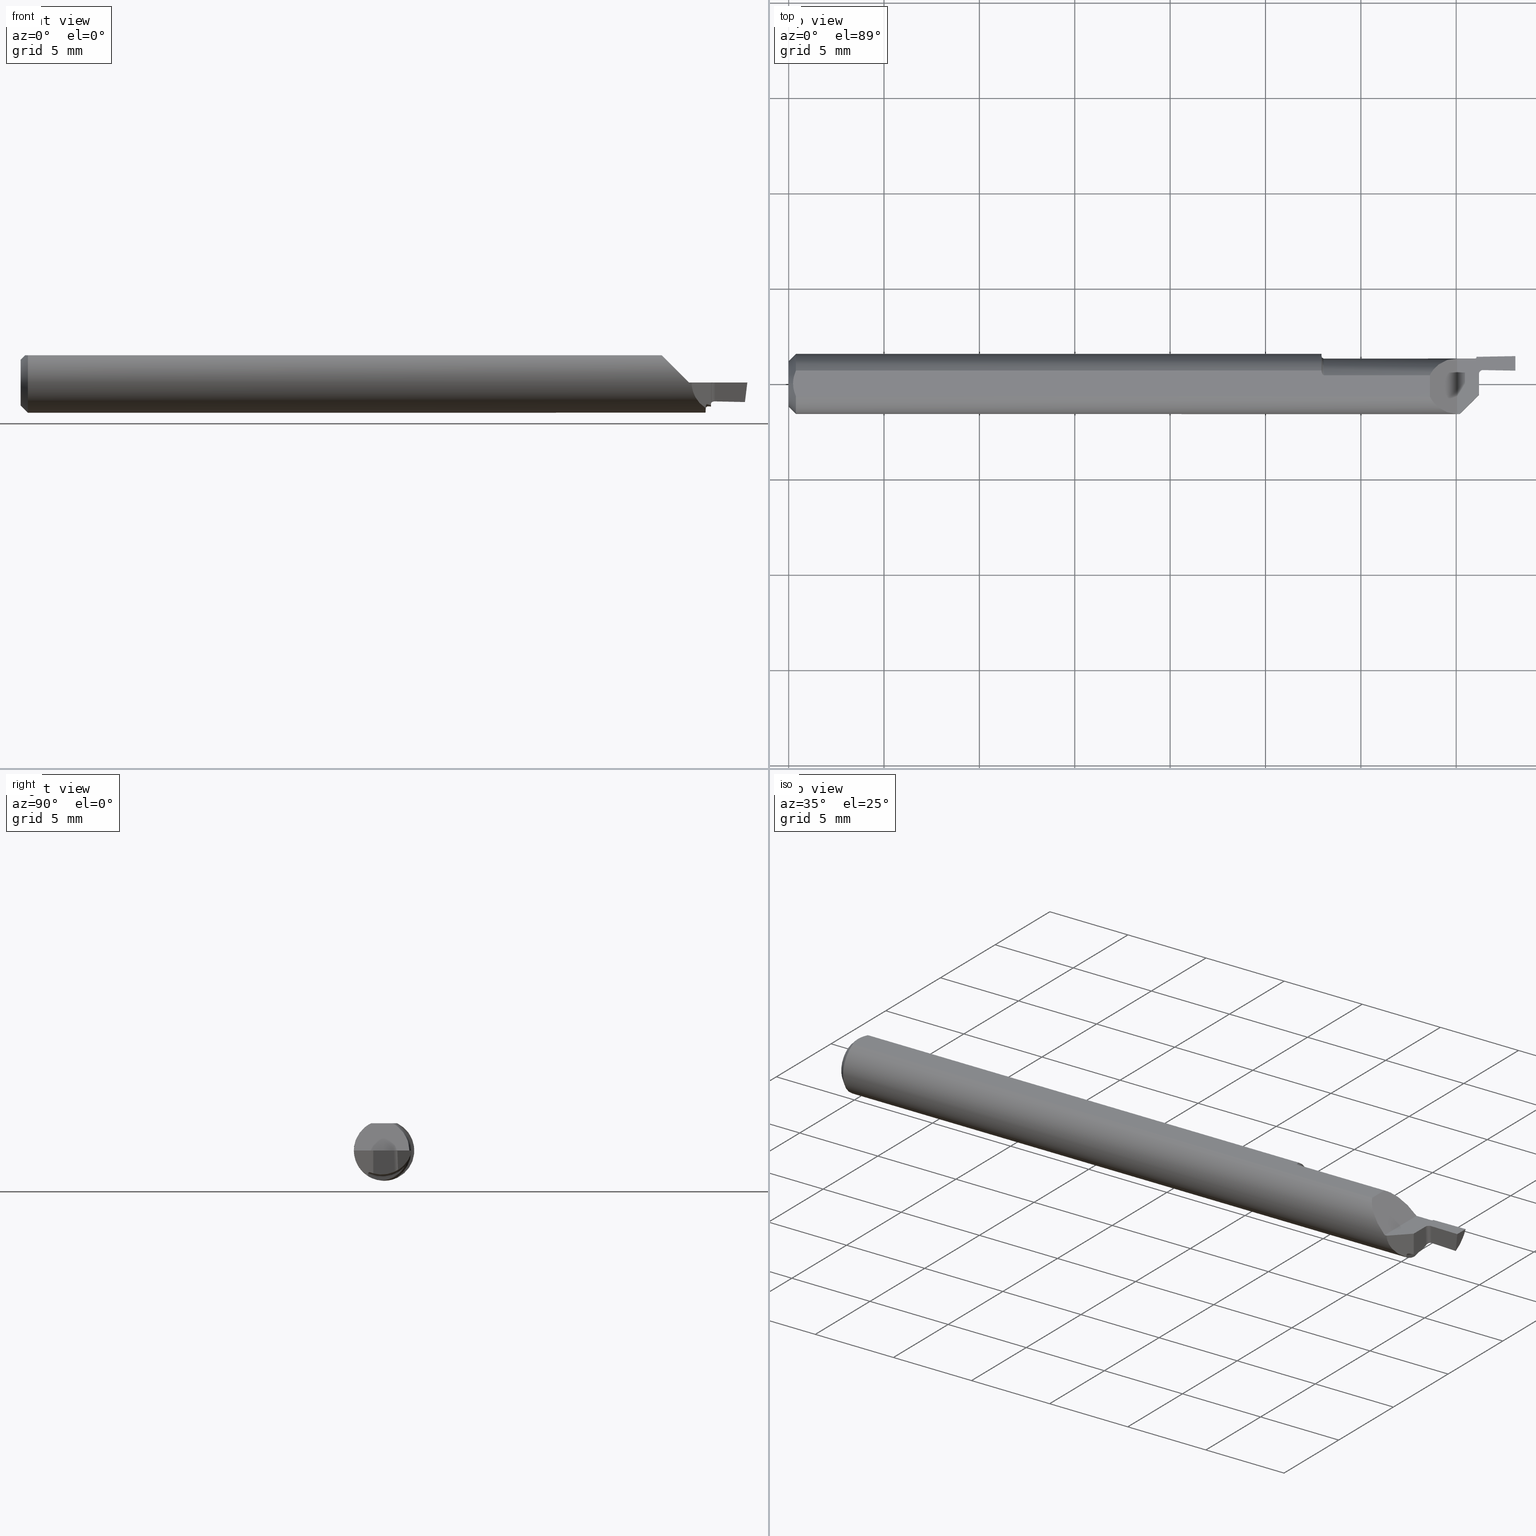
[diagram: canonical four-view strip — front | top / right | iso, engineering-drawing reading convention]
A machine part, canonical four-view strip (front | top / right | iso — engineering-drawing reading convention). The complete STEP part file that produces these views, byte-faithful:
ISO-10303-21;
HEADER;
FILE_DESCRIPTION (( 'STEP AP203' ),
    '1' );
FILE_NAME ('220010-FG125-030.STEP',
    '2024-05-24T21:38:16',
    ( '' ),
    ( '' ),
    'SwSTEP 2.0',
    'SolidWorks 2022',
    '' );
FILE_SCHEMA (( 'CONFIG_CONTROL_DESIGN' ));
ENDSEC;

DATA;
#1 = CARTESIAN_POINT ( 'NONE',  ( 1.433163411115021768, 0.02987436335504772833, -0.03889608139130681236 ) ) ;
#2 = EDGE_CURVE ( 'NONE', #35, #446, #607, .T. ) ;
#3 = DIRECTION ( 'NONE',  ( 0.000000000000000000, 0.000000000000000000, -1.000000000000000000 ) ) ;
#4 = ADVANCED_FACE ( 'NONE', ( #261 ), #557, .T. ) ;
#5 = ORIENTED_EDGE ( 'NONE', *, *, #352, .F. ) ;
#6 = CARTESIAN_POINT ( 'NONE',  ( 1.414646748416369837, 0.04911742446637919202, -0.01986130268372147262 ) ) ;
#7 = DIRECTION ( 'NONE',  ( 0.1217869383157124674, -0.03676811390802552093, 0.9918750160455355180 ) ) ;
#8 = CARTESIAN_POINT ( 'NONE',  ( 1.433239966996807002, 0.03426024688513124722, -0.3937401514929490531 ) ) ;
#9 = B_SPLINE_CURVE_WITH_KNOTS ( 'NONE', 3,
 ( #183, #193, #57, #405, #768, #513, #536, #657, #460, #130, #259, #850, #593, #654 ),
 .UNSPECIFIED., .F., .F.,
 ( 4, 2, 2, 2, 2, 2, 4 ),
 ( 1.969247296002426663E-07, 2.779231371840833157E-05, 5.538770270721642087E-05, 0.0001105784806848325520, 0.0002209600366400678501, 0.0004417231485505385006, 0.0008832493723714796930 ),
 .UNSPECIFIED. ) ;
#10 = CARTESIAN_POINT ( 'NONE',  ( 1.420000000000000151, 0.05595283316552415731, 4.268512490100411279E-18 ) ) ;
#11 = CARTESIAN_POINT ( 'NONE',  ( 1.430886483861644187, 0.02991228703153488155, -0.03884396457506275602 ) ) ;
#12 = CARTESIAN_POINT ( 'NONE',  ( 1.416999999999997817, 0.05034810659660593490, -0.01568875208750613454 ) ) ;
#13 = CIRCLE ( 'NONE', #731, 0.06249999999999999306 ) ;
#14 = VERTEX_POINT ( 'NONE', #786 ) ;
#15 = CARTESIAN_POINT ( 'NONE',  ( 1.104999999999999982, 0.01688490924104400076, 0.05634999999999998344 ) ) ;
#16 = DIRECTION ( 'NONE',  ( -1.000000000000000000, -0.000000000000000000, -0.000000000000000000 ) ) ;
#17 = CARTESIAN_POINT ( 'NONE',  ( 1.425000000000000266, -0.02234999999999998446, -0.04707375397128707450 ) ) ;
#18 = DIRECTION ( 'NONE',  ( 0.000000000000000000, 0.000000000000000000, 1.000000000000000000 ) ) ;
#19 = LINE ( 'NONE', #225, #698 ) ;
#20 = VERTEX_POINT ( 'NONE', #472 ) ;
#21 = CARTESIAN_POINT ( 'NONE',  ( 1.417000000000000259, -0.01015076164021955218, 0.000000000000000000 ) ) ;
#22 = CARTESIAN_POINT ( 'NONE',  ( 0.000000000000000000, 0.000000000000000000, -0.04734999999999997544 ) ) ;
#23 = CARTESIAN_POINT ( 'NONE',  ( 1.425039367740875251, 0.02275913519116172165, -0.0002059503887043581075 ) ) ;
#24 = ORIENTED_EDGE ( 'NONE', *, *, #386, .T. ) ;
#25 = VECTOR ( 'NONE', #417, 39.37007874015748143 ) ;
#26 = CARTESIAN_POINT ( 'NONE',  ( 0.01500000000000011394, 0.000000000000000000, 0.000000000000000000 ) ) ;
#27 = DIRECTION ( 'NONE',  ( 0.01745240643726973101, -0.9998476951563914916, 0.000000000000000000 ) ) ;
#28 = EDGE_CURVE ( 'NONE', #468, #14, #574, .T. ) ;
#29 = ORIENTED_EDGE ( 'NONE', *, *, #28, .T. ) ;
#30 = CARTESIAN_POINT ( 'NONE',  ( 1.416685395418073368, -0.03066460458192653976, -0.04474185114523403228 ) ) ;
#31 = CARTESIAN_POINT ( 'NONE',  ( 1.425026640399676525, 0.02116984081405726831, -0.04371209411390192257 ) ) ;
#32 = ORIENTED_EDGE ( 'NONE', *, *, #386, .F. ) ;
#33 = FACE_OUTER_BOUND ( 'NONE', #510, .T. ) ;
#34 = CARTESIAN_POINT ( 'NONE',  ( 1.418666746045353033, -0.005212802763935432161, 0.01300000000000000114 ) ) ;
#35 = VERTEX_POINT ( 'NONE', #537 ) ;
#36 = DIRECTION ( 'NONE',  ( 0.000000000000000000, 0.000000000000000000, 1.000000000000000000 ) ) ;
#37 = EDGE_CURVE ( 'NONE', #124, #618, #145, .T. ) ;
#38 = MECHANICAL_CONTEXT ( 'NONE', #382, 'mechanical' ) ;
#39 = ADVANCED_FACE ( 'NONE', ( #190 ), #610, .F. ) ;
#40 = EDGE_LOOP ( 'NONE', ( #770, #80, #498, #349, #367, #652 ) ) ;
#41 = PLANE ( 'NONE',  #476 ) ;
#42 = ORIENTED_EDGE ( 'NONE', *, *, #564, .T. ) ;
#43 = DIRECTION ( 'NONE',  ( -1.000000000000000000, -0.000000000000000000, -0.000000000000000000 ) ) ;
#44 = DATE_AND_TIME ( #714, #76 ) ;
#45 = EDGE_LOOP ( 'NONE', ( #642, #708, #705 ) ) ;
#46 =( BOUNDED_CURVE ( )  B_SPLINE_CURVE ( 3, ( #269, #223, #739, #742 ),
 .UNSPECIFIED., .F., .T. ) 
 B_SPLINE_CURVE_WITH_KNOTS ( ( 4, 4 ),
 ( 1.192711709921987051, 1.291247640566001831 ),
 .UNSPECIFIED. ) 
 CURVE ( )  GEOMETRIC_REPRESENTATION_ITEM ( )  RATIONAL_B_SPLINE_CURVE ( ( 1.000000000000000000, 0.9991910528495072663, 0.9991910528495072663, 1.000000000000000000 ) ) 
 REPRESENTATION_ITEM ( '' )  );
#47 = PLANE ( 'NONE',  #118 ) ;
#48 = DESIGN_CONTEXT ( 'detailed design', #600, 'design' ) ;
#49 = ORIENTED_EDGE ( 'NONE', *, *, #191, .T. ) ;
#50 = CARTESIAN_POINT ( 'NONE',  ( 0.000000000000000000, 0.000000000000000000, 0.000000000000000000 ) ) ;
#51 = ORIENTED_EDGE ( 'NONE', *, *, #638, .F. ) ;
#52 = PERSON_AND_ORGANIZATION ( #843, #682 ) ;
#53 = CARTESIAN_POINT ( 'NONE',  ( 1.323499999999999677, -0.02668707552355638682, 0.05634999999999998344 ) ) ;
#54 = ORIENTED_EDGE ( 'NONE', *, *, #88, .F. ) ;
#55 = ORIENTED_EDGE ( 'NONE', *, *, #660, .T. ) ;
#56 = PRODUCT_DEFINITION ( 'UNKNOWN', '', #221, #48 ) ;
#57 = CARTESIAN_POINT ( 'NONE',  ( 1.104319580330644035, -0.003902547811360122451, -0.06222834581043044239 ) ) ;
#58 = EDGE_CURVE ( 'NONE', #198, #355, #581, .T. ) ;
#59 = VECTOR ( 'NONE', #623, 39.37007874015748143 ) ;
#60 = CARTESIAN_POINT ( 'NONE',  ( 1.425000000000000266, 0.006896967576768494451, -0.05012859109131181240 ) ) ;
#61 =( GEOMETRIC_REPRESENTATION_CONTEXT ( 3 ) GLOBAL_UNCERTAINTY_ASSIGNED_CONTEXT ( ( #394 ) ) GLOBAL_UNIT_ASSIGNED_CONTEXT ( ( #234, #640, #699 ) ) REPRESENTATION_CONTEXT ( 'NONE', 'WORKASPACE' ) );
#62 = VERTEX_POINT ( 'NONE', #671 ) ;
#63 = CARTESIAN_POINT ( 'NONE',  ( 1.418666746045353033, -0.005212802763935433029, 0.01300000000000000114 ) ) ;
#64 = DIRECTION ( 'NONE',  ( 0.9998476951563914916, 0.01745240643726934937, 0.000000000000000000 ) ) ;
#65 = LINE ( 'NONE', #339, #543 ) ;
#66 = DIRECTION ( 'NONE',  ( 1.000000000000000000, 0.000000000000000000, 0.000000000000000000 ) ) ;
#67 = CARTESIAN_POINT ( 'NONE',  ( 0.01499999999996637530, -0.02668707552368985297, 0.05635000000000000425 ) ) ;
#68 = CARTESIAN_POINT ( 'NONE',  ( 1.500000000000000222, -0.1623500000000000498, 0.000000000000000000 ) ) ;
#69 = ORIENTED_EDGE ( 'NONE', *, *, #70, .F. ) ;
#70 = EDGE_CURVE ( 'NONE', #198, #839, #336, .T. ) ;
#71 = CARTESIAN_POINT ( 'NONE',  ( 1.425026640399676525, 0.02116984081405726831, -0.04371209411390192257 ) ) ;
#72 = PLANE ( 'NONE',  #615 ) ;
#73 = CARTESIAN_POINT ( 'NONE',  ( 1.412866610771963627, 0.04058328200904658817, -0.03650077827929641694 ) ) ;
#74 = AXIS2_PLACEMENT_3D ( 'NONE', #505, #516, #36 ) ;
#75 = VERTEX_POINT ( 'NONE', #73 ) ;
#76 = LOCAL_TIME ( 14, 38, 16.00000000000000000, #404 ) ;
#77 = CARTESIAN_POINT ( 'NONE',  ( 1.412954748534647864, 0.04489863580460894121, -0.02986149759486148372 ) ) ;
#78 = CARTESIAN_POINT ( 'NONE',  ( 1.323499999999999677, -0.02668707552355638682, 0.05634999999999998344 ) ) ;
#79 = LINE ( 'NONE', #370, #363 ) ;
#80 = ORIENTED_EDGE ( 'NONE', *, *, #483, .T. ) ;
#81 = CARTESIAN_POINT ( 'NONE',  ( 1.100041386578069602, 0.02471711963996609321, 0.05635000000000000425 ) ) ;
#82 = DIRECTION ( 'NONE',  ( -1.000000000000000000, -0.000000000000000000, -0.000000000000000000 ) ) ;
#83 = CARTESIAN_POINT ( 'NONE',  ( 1.425000000000000266, 0.02051750908561918857, -0.06235000000000000264 ) ) ;
#84 = EDGE_LOOP ( 'NONE', ( #240, #479 ) ) ;
#85 = CARTESIAN_POINT ( 'NONE',  ( 1.414154425502611945, -0.03319557449738821941, -0.04806743682642624499 ) ) ;
#86 = FACE_OUTER_BOUND ( 'NONE', #84, .T. ) ;
#87 = EDGE_CURVE ( 'NONE', #701, #226, #507, .T. ) ;
#88 = EDGE_CURVE ( 'NONE', #458, #195, #260, .T. ) ;
#89 = DIRECTION ( 'NONE',  ( -1.000000000000000000, -0.000000000000000000, -0.000000000000000000 ) ) ;
#90 = AXIS2_PLACEMENT_3D ( 'NONE', #503, #150, #359 ) ;
#91 = ORIENTED_EDGE ( 'NONE', *, *, #597, .T. ) ;
#92 = CIRCLE ( 'NONE', #576, 0.06235000000000000264 ) ;
#93 = VECTOR ( 'NONE', #712, 39.37007874015748143 ) ;
#94 = CARTESIAN_POINT ( 'NONE',  ( 0.01500000000000011394, 0.02668707552355635559, 0.05635000000000000425 ) ) ;
#95 = CARTESIAN_POINT ( 'NONE',  ( 1.425938313768136956, 0.02482258145140752575, -0.0001333563681709523316 ) ) ;
#96 = EDGE_LOOP ( 'NONE', ( #672, #717, #438, #168, #790 ) ) ;
#97 = CARTESIAN_POINT ( 'NONE',  ( 0.01500000000000011394, 0.000000000000000000, 0.000000000000000000 ) ) ;
#98 = CARTESIAN_POINT ( 'NONE',  ( 1.384999999999999787, -0.06234999999999998183, 0.000000000000000000 ) ) ;
#99 = CARTESIAN_POINT ( 'NONE',  ( 1.428951142015526310, 0.02772835889089013753, -3.006366610623574146E-05 ) ) ;
#100 = ORIENTED_EDGE ( 'NONE', *, *, #284, .T. ) ;
#101 = EDGE_CURVE ( 'NONE', #458, #583, #65, .T. ) ;
#102 = B_SPLINE_CURVE_WITH_KNOTS ( 'NONE', 3,
 ( #426, #414, #743, #144, #674, #67 ),
 .UNSPECIFIED., .F., .F.,
 ( 4, 2, 4 ),
 ( 0.001785160430147911910, 0.002131733753131888690, 0.002478307076115865686 ),
 .UNSPECIFIED. ) ;
#103 = ADVANCED_FACE ( 'NONE', ( #415 ), #736, .T. ) ;
#104 = CARTESIAN_POINT ( 'NONE',  ( 1.413667507569571047, -0.005300064796121778041, 0.01300000000000000114 ) ) ;
#105 = PERSON_AND_ORGANIZATION_ROLE ( 'design_owner' ) ;
#106 = DIRECTION ( 'NONE',  ( -1.000000000000000000, 0.000000000000000000, 0.000000000000000000 ) ) ;
#107 = ORIENTED_EDGE ( 'NONE', *, *, #420, .F. ) ;
#108 = DIRECTION ( 'NONE',  ( 1.000000000000000000, 0.000000000000000000, 0.000000000000000000 ) ) ;
#109 = AXIS2_PLACEMENT_3D ( 'NONE', #123, #676, #274 ) ;
#110 = AXIS2_PLACEMENT_3D ( 'NONE', #50, #719, #400 ) ;
#111 = PLANE ( 'NONE',  #521 ) ;
#112 = ORIENTED_EDGE ( 'NONE', *, *, #420, .T. ) ;
#113 = LINE ( 'NONE', #649, #453 ) ;
#114 = VERTEX_POINT ( 'NONE', #741 ) ;
#115 = EDGE_CURVE ( 'NONE', #658, #114, #418, .T. ) ;
#116 = ORIENTED_EDGE ( 'NONE', *, *, #660, .F. ) ;
#117 = CC_DESIGN_PERSON_AND_ORGANIZATION_ASSIGNMENT ( #52, #457, ( #221 ) ) ;
#118 = AXIS2_PLACEMENT_3D ( 'NONE', #575, #727, #831 ) ;
#119 = PERSON_AND_ORGANIZATION ( #843, #682 ) ;
#120 = AXIS2_PLACEMENT_3D ( 'NONE', #795, #201, #477 ) ;
#121 = VERTEX_POINT ( 'NONE', #598 ) ;
#122 = DIRECTION ( 'NONE',  ( 0.000000000000000000, 0.000000000000000000, -1.000000000000000000 ) ) ;
#123 = CARTESIAN_POINT ( 'NONE',  ( 1.269052852351982619, -0.01015076164021955218, 0.000000000000000000 ) ) ;
#124 = VERTEX_POINT ( 'NONE', #704 ) ;
#125 = EDGE_CURVE ( 'NONE', #75, #658, #257, .T. ) ;
#126 = ADVANCED_FACE ( 'NONE', ( #806 ), #380, .T. ) ;
#127 = CARTESIAN_POINT ( 'NONE',  ( 1.269052852351982619, 0.05234923835978044088, 0.000000000000000000 ) ) ;
#128 = CARTESIAN_POINT ( 'NONE',  ( 1.419480645794770401, 0.05280797792858198114, -0.01031903272807504005 ) ) ;
#129 = VERTEX_POINT ( 'NONE', #691 ) ;
#130 = CARTESIAN_POINT ( 'NONE',  ( 1.101213335745415689, 0.006224460120085395856, -0.06210157390335328820 ) ) ;
#131 = AXIS2_PLACEMENT_3D ( 'NONE', #133, #541, #139 ) ;
#132 = DIRECTION ( 'NONE',  ( -0.000000000000000000, 0.000000000000000000, 1.000000000000000000 ) ) ;
#133 = CARTESIAN_POINT ( 'NONE',  ( 1.100000000000000089, 0.000000000000000000, 0.000000000000000000 ) ) ;
#134 = VERTEX_POINT ( 'NONE', #700 ) ;
#135 = CARTESIAN_POINT ( 'NONE',  ( 1.419999999999999929, 0.05575318947544819631, -0.0009386899350761216060 ) ) ;
#136 = CARTESIAN_POINT ( 'NONE',  ( 1.420000000000000151, -0.1623500000000000498, 0.000000000000000000 ) ) ;
#137 = DIRECTION ( 'NONE',  ( 0.000000000000000000, 0.000000000000000000, -1.000000000000000000 ) ) ;
#138 = DIRECTION ( 'NONE',  ( -0.0006090802009083879243, -0.03489418134011375294, 0.9993908270190957621 ) ) ;
#139 = DIRECTION ( 'NONE',  ( 0.000000000000000000, 0.000000000000000000, -1.000000000000000000 ) ) ;
#140 = ORIENTED_EDGE ( 'NONE', *, *, #410, .F. ) ;
#141 = PRODUCT ( '220010-FG125-030', '220010-FG125-030', '', ( #38 ) ) ;
#142 = APPROVAL ( #653, 'UNSPECIFIED' ) ;
#143 = CARTESIAN_POINT ( 'NONE',  ( 1.419999999999999929, 0.05553197906730534400, -0.001872534203191115543 ) ) ;
#144 = CARTESIAN_POINT ( 'NONE',  ( 0.01166922356462425300, -0.01807379779248688770, 0.05635000000000000425 ) ) ;
#145 = B_SPLINE_CURVE_WITH_KNOTS ( 'NONE', 3,
 ( #208, #533, #678, #662, #411, #617 ),
 .UNSPECIFIED., .F., .F.,
 ( 4, 2, 4 ),
 ( 0.02300346264997409074, 0.02310447889865626520, 0.02320549514733843965 ),
 .UNSPECIFIED. ) ;
#146 = DIRECTION ( 'NONE',  ( -0.7071067811865509034, -0.7071067811865440200, 0.000000000000000000 ) ) ;
#147 = EDGE_LOOP ( 'NONE', ( #832, #586, #299, #161, #389, #622 ) ) ;
#148 = DIRECTION ( 'NONE',  ( 0.000000000000000000, 0.000000000000000000, 1.000000000000000000 ) ) ;
#149 = CARTESIAN_POINT ( 'NONE',  ( 1.414154425502611945, -0.03319557449738821941, -0.04846424529295904199 ) ) ;
#150 = DIRECTION ( 'NONE',  ( -0.9998476951563914916, -0.01745240643726934937, -0.000000000000000000 ) ) ;
#151 = EDGE_LOOP ( 'NONE', ( #326, #793, #100, #419, #679 ) ) ;
#152 = EDGE_CURVE ( 'NONE', #170, #612, #19, .T. ) ;
#153 = DIRECTION ( 'NONE',  ( 0.01745240643726934937, -0.9998476951563914916, 0.000000000000000000 ) ) ;
#154 = CARTESIAN_POINT ( 'NONE',  ( 0.000000000000000000, 0.000000000000000000, 0.000000000000000000 ) ) ;
#155 = CARTESIAN_POINT ( 'NONE',  ( 1.417693267147779546, 0.05055776592643939499, -0.01519478687254377167 ) ) ;
#156 = EDGE_LOOP ( 'NONE', ( #376, #140, #24, #210, #848, #547, #746, #381 ) ) ;
#157 = FACE_OUTER_BOUND ( 'NONE', #40, .T. ) ;
#158 = CARTESIAN_POINT ( 'NONE',  ( 1.414154425502611945, -0.03319557449738821941, -0.05277855941372736059 ) ) ;
#159 = EDGE_CURVE ( 'NONE', #591, #618, #772, .T. ) ;
#160 = CARTESIAN_POINT ( 'NONE',  ( 1.100000000000000089, 0.02786438881009973417, 0.05577722058546472073 ) ) ;
#161 = ORIENTED_EDGE ( 'NONE', *, *, #470, .T. ) ;
#162 = CARTESIAN_POINT ( 'NONE',  ( 1.414279708269049252, -0.03307029173095102359, -0.04728707874192358829 ) ) ;
#163 = CARTESIAN_POINT ( 'NONE',  ( 1.420000000000000151, 0.05528931926439398237, -0.002801037521638552377 ) ) ;
#164 = CARTESIAN_POINT ( 'NONE',  ( 1.425026559697758044, 0.02145577332822599589, -0.04357967681122140030 ) ) ;
#165 = ORIENTED_EDGE ( 'NONE', *, *, #625, .F. ) ;
#166 = CARTESIAN_POINT ( 'NONE',  ( 1.414501721748490537, -0.03284827825150957170, -0.04654317053642099966 ) ) ;
#167 = DIRECTION ( 'NONE',  ( 0.000000000000000000, 0.000000000000000000, -1.000000000000000000 ) ) ;
#168 = ORIENTED_EDGE ( 'NONE', *, *, #125, .F. ) ;
#169 = CARTESIAN_POINT ( 'NONE',  ( 1.415042656169417823, -0.03230734383058247311, -0.04568691360271269486 ) ) ;
#170 = VERTEX_POINT ( 'NONE', #213 ) ;
#171 = AXIS2_PLACEMENT_3D ( 'NONE', #230, #750, #146 ) ;
#172 = DIRECTION ( 'NONE',  ( 0.000000000000000000, 0.000000000000000000, 1.000000000000000000 ) ) ;
#173 = VECTOR ( 'NONE', #64, 39.37007874015748143 ) ;
#174 = CC_DESIGN_APPROVAL ( #142, ( #732 ) ) ;
#175 = B_SPLINE_CURVE_WITH_KNOTS ( 'NONE', 3,
 ( #565, #643, #709, #519 ),
 .UNSPECIFIED., .F., .F.,
 ( 4, 4 ),
 ( 0.001092780784058554637, 0.001785160430147911910 ),
 .UNSPECIFIED. ) ;
#176 = ORIENTED_EDGE ( 'NONE', *, *, #659, .T. ) ;
#177 = EDGE_CURVE ( 'NONE', #551, #424, #290, .T. ) ;
#178 = APPROVAL_DATE_TIME ( #592, #590 ) ;
#179 = EDGE_CURVE ( 'NONE', #522, #612, #851, .T. ) ;
#180 = CC_DESIGN_PERSON_AND_ORGANIZATION_ASSIGNMENT ( #186, #391, ( #221 ) ) ;
#181 = VERTEX_POINT ( 'NONE', #810 ) ;
#182 = DATE_TIME_ROLE ( 'classification_date' ) ;
#183 = CARTESIAN_POINT ( 'NONE',  ( 1.104999999999999982, -0.004152913094840915767, -0.06221154083308578359 ) ) ;
#184 = VERTEX_POINT ( 'NONE', #294 ) ;
#185 = AXIS2_PLACEMENT_3D ( 'NONE', #8, #789, #726 ) ;
#186 = PERSON_AND_ORGANIZATION ( #843, #682 ) ;
#187 = CARTESIAN_POINT ( 'NONE',  ( 1.474181226817239176, 0.02919049411688829157, -0.03981514788695930673 ) ) ;
#188 = VECTOR ( 'NONE', #66, 39.37007874015748143 ) ;
#189 = EDGE_CURVE ( 'NONE', #195, #551, #401, .T. ) ;
#190 = FACE_OUTER_BOUND ( 'NONE', #692, .T. ) ;
#191 = EDGE_CURVE ( 'NONE', #656, #677, #247, .T. ) ;
#192 =( BOUNDED_CURVE ( )  B_SPLINE_CURVE ( 3, ( #511, #310, #307, #243 ),
 .UNSPECIFIED., .F., .T. ) 
 B_SPLINE_CURVE_WITH_KNOTS ( ( 4, 4 ),
 ( 1.637452139464578682, 2.132237832494114915 ),
 .UNSPECIFIED. ) 
 CURVE ( )  GEOMETRIC_REPRESENTATION_ITEM ( )  RATIONAL_B_SPLINE_CURVE ( ( 1.000000000000000000, 0.9797027654045171730, 0.9797027654045171730, 1.000000000000000000 ) ) 
 REPRESENTATION_ITEM ( '' )  );
#193 = CARTESIAN_POINT ( 'NONE',  ( 1.104632508610592811, -0.004152913094840731886, -0.06221154083308579746 ) ) ;
#194 = CARTESIAN_POINT ( 'NONE',  ( 1.417486120027107610, 0.05046086065715898322, -0.01537931774520884774 ) ) ;
#195 = VERTEX_POINT ( 'NONE', #285 ) ;
#196 = CARTESIAN_POINT ( 'NONE',  ( 1.499999999999999778, 0.05734923835978043838, 1.067128122525102820E-17 ) ) ;
#197 = CARTESIAN_POINT ( 'NONE',  ( 1.425000000000000266, 0.02051750908561918857, -0.04400945175664262160 ) ) ;
#198 = VERTEX_POINT ( 'NONE', #155 ) ;
#199 = LINE ( 'NONE', #799, #829 ) ;
#200 = TOROIDAL_SURFACE ( 'NONE', #396, 0.06750000000000004607, 0.005000000000000000104 ) ;
#201 = DIRECTION ( 'NONE',  ( -1.000000000000000000, -0.000000000000000000, -0.000000000000000000 ) ) ;
#202 = AXIS2_PLACEMENT_3D ( 'NONE', #735, #342, #545 ) ;
#203 = CARTESIAN_POINT ( 'NONE',  ( 1.418895124944870023, 0.05169088074722530401, -0.01288378093721417351 ) ) ;
#204 = EDGE_LOOP ( 'NONE', ( #563, #107, #236 ) ) ;
#205 = DIRECTION ( 'NONE',  ( -0.000000000000000000, 1.000000000000000000, 0.000000000000000000 ) ) ;
#206 = EDGE_CURVE ( 'NONE', #195, #129, #440, .T. ) ;
#207 = CARTESIAN_POINT ( 'NONE',  ( 1.100000000000000089, -0.01015076164021955218, 0.000000000000000000 ) ) ;
#208 = CARTESIAN_POINT ( 'NONE',  ( 1.425005047996913632, 0.02080166127782826294, -0.008282853067078398135 ) ) ;
#209 = CC_DESIGN_PERSON_AND_ORGANIZATION_ASSIGNMENT ( #119, #722, ( #732 ) ) ;
#210 = ORIENTED_EDGE ( 'NONE', *, *, #392, .T. ) ;
#211 = DIRECTION ( 'NONE',  ( 0.000000000000000000, -1.000000000000000000, 0.000000000000000000 ) ) ;
#212 = CARTESIAN_POINT ( 'NONE',  ( 1.420000000000000151, -0.01015076164021955218, 0.000000000000000000 ) ) ;
#213 = CARTESIAN_POINT ( 'NONE',  ( 1.413647483962142459, -0.004152913094841584503, -0.06221154083308579746 ) ) ;
#214 = ORIENTED_EDGE ( 'NONE', *, *, #115, .T. ) ;
#215 = CARTESIAN_POINT ( 'NONE',  ( 1.425009415386419898, 0.02092454285482212017, -0.01544895205446448518 ) ) ;
#216 = CARTESIAN_POINT ( 'NONE',  ( 1.334111011196256191, -0.04909232110324725923, 0.04573898880374377418 ) ) ;
#217 = CYLINDRICAL_SURFACE ( 'NONE', #90, 0.06250000000000004163 ) ;
#218 = CIRCLE ( 'NONE', #559, 0.008000000000000024453 ) ;
#219 = ADVANCED_FACE ( 'NONE', ( #488 ), #561, .F. ) ;
#220 = ORIENTED_EDGE ( 'NONE', *, *, #753, .F. ) ;
#221 = PRODUCT_DEFINITION_FORMATION_WITH_SPECIFIED_SOURCE ( 'ANY', '', #141, .NOT_KNOWN. ) ;
#222 = EDGE_CURVE ( 'NONE', #320, #181, #79, .T. ) ;
#223 = CARTESIAN_POINT ( 'NONE',  ( 1.421012218400695248, -0.02633778159930532173, -0.04584392788217869080 ) ) ;
#224 = CARTESIAN_POINT ( 'NONE',  ( 1.379849999999998911, -0.06235000000000000264, 0.000000000000000000 ) ) ;
#225 = CARTESIAN_POINT ( 'NONE',  ( 1.261000000000000121, -0.004152913094840908828, -0.06221154083308578359 ) ) ;
#226 = VERTEX_POINT ( 'NONE', #827 ) ;
#227 = CARTESIAN_POINT ( 'NONE',  ( 1.414677295900622855, -0.03267270409937733655, -0.04623113489739155701 ) ) ;
#228 = EDGE_CURVE ( 'NONE', #20, #535, #354, .T. ) ;
#229 = DIRECTION ( 'NONE',  ( 1.000000000000000000, 0.000000000000000000, 0.000000000000000000 ) ) ;
#230 = CARTESIAN_POINT ( 'NONE',  ( 1.425000000000000266, -0.02234999999999998446, -0.06235000000000000264 ) ) ;
#231 =( BOUNDED_CURVE ( )  B_SPLINE_CURVE ( 3, ( #71, #281, #215, #814 ),
 .UNSPECIFIED., .F., .T. ) 
 B_SPLINE_CURVE_WITH_KNOTS ( ( 4, 4 ),
 ( 6.201553208002957618, 6.247658810437159538 ),
 .UNSPECIFIED. ) 
 CURVE ( )  GEOMETRIC_REPRESENTATION_ITEM ( )  RATIONAL_B_SPLINE_CURVE ( ( 1.000000000000000000, 0.9998228639635311499, 0.9998228639635311499, 1.000000000000000000 ) ) 
 REPRESENTATION_ITEM ( '' )  );
#232 = ORIENTED_EDGE ( 'NONE', *, *, #753, .T. ) ;
#233 = CARTESIAN_POINT ( 'NONE',  ( 1.414365763794512842, -0.03298423620548735641, -0.04690733185399326849 ) ) ;
#234 =( CONVERSION_BASED_UNIT ( 'INCH', #582 ) LENGTH_UNIT ( ) NAMED_UNIT ( #611 ) );
#235 = CARTESIAN_POINT ( 'NONE',  ( 0.000000000000000000, -0.06234999999999999570, 0.000000000000000000 ) ) ;
#236 = ORIENTED_EDGE ( 'NONE', *, *, #651, .F. ) ;
#237 = CARTESIAN_POINT ( 'NONE',  ( 1.433139705841341094, 0.02851628913543899010, 0.000000000000000000 ) ) ;
#238 = CALENDAR_DATE ( 2024, 24, 5 ) ;
#239 = FACE_OUTER_BOUND ( 'NONE', #96, .T. ) ;
#240 = ORIENTED_EDGE ( 'NONE', *, *, #87, .T. ) ;
#241 = CARTESIAN_POINT ( 'NONE',  ( 1.384999999999999787, -0.06235000000000000264, -0.02192039626363508770 ) ) ;
#242 = ORIENTED_EDGE ( 'NONE', *, *, #70, .T. ) ;
#243 = CARTESIAN_POINT ( 'NONE',  ( 1.414154425502611945, -0.03319557449738821941, -0.05277855941372736059 ) ) ;
#244 = APPROVAL_ROLE ( '' ) ;
#245 = ORIENTED_EDGE ( 'NONE', *, *, #358, .F. ) ;
#246 = ADVANCED_FACE ( 'NONE', ( #431 ), #217, .T. ) ;
#247 = CIRCLE ( 'NONE', #421, 0.002999999999999940648 ) ;
#248 = EDGE_CURVE ( 'NONE', #14, #134, #442, .T. ) ;
#249 = LINE ( 'NONE', #775, #93 ) ;
#250 = LOCAL_TIME ( 14, 38, 16.00000000000000000, #506 ) ;
#251 = ORIENTED_EDGE ( 'NONE', *, *, #687, .F. ) ;
#252 = FACE_OUTER_BOUND ( 'NONE', #291, .T. ) ;
#253 = ORIENTED_EDGE ( 'NONE', *, *, #58, .T. ) ;
#254 =( BOUNDED_CURVE ( )  B_SPLINE_CURVE ( 3, ( #158, #512, #241, #98 ),
 .UNSPECIFIED., .F., .T. ) 
 B_SPLINE_CURVE_WITH_KNOTS ( ( 4, 4 ),
 ( 5.273830486083906699, 6.283185307179586232 ),
 .UNSPECIFIED. ) 
 CURVE ( )  GEOMETRIC_REPRESENTATION_ITEM ( )  RATIONAL_B_SPLINE_CURVE ( ( 1.000000000000000000, 0.9168870000423743338, 0.9168870000423743338, 1.000000000000000000 ) ) 
 REPRESENTATION_ITEM ( '' )  );
#255 = EDGE_CURVE ( 'NONE', #701, #121, #758, .T. ) ;
#256 = CARTESIAN_POINT ( 'NONE',  ( 1.419301221993359396, 0.05237571973049671981, -0.01135847671579576050 ) ) ;
#257 = CIRCLE ( 'NONE', #303, 0.06750000000000004607 ) ;
#258 = COORDINATED_UNIVERSAL_TIME_OFFSET ( 8, 0, .BEHIND. ) ;
#259 = CARTESIAN_POINT ( 'NONE',  ( 1.100888183529233011, 0.009062329473077239753, -0.06175254173764931770 ) ) ;
#260 =( BOUNDED_CURVE ( )  B_SPLINE_CURVE ( 3, ( #484, #792, #60, #197 ),
 .UNSPECIFIED., .F., .T. ) 
 B_SPLINE_CURVE_WITH_KNOTS ( ( 4, 4 ),
 ( 1.291247640566001609, 1.993090102354243109 ),
 .UNSPECIFIED. ) 
 CURVE ( )  GEOMETRIC_REPRESENTATION_ITEM ( )  RATIONAL_B_SPLINE_CURVE ( ( 1.000000000000000000, 0.9593709508208819736, 0.9593709508208819736, 1.000000000000000000 ) ) 
 REPRESENTATION_ITEM ( '' )  );
#261 = FACE_OUTER_BOUND ( 'NONE', #797, .T. ) ;
#262 = ORIENTED_EDGE ( 'NONE', *, *, #388, .F. ) ;
#263 = DIRECTION ( 'NONE',  ( 1.000000000000000000, 0.000000000000000000, 0.000000000000000000 ) ) ;
#264 = VERTEX_POINT ( 'NONE', #661 ) ;
#265 = CARTESIAN_POINT ( 'NONE',  ( 1.412866610771963627, 0.04058328200904658817, -0.03650077827929641694 ) ) ;
#266 = DIRECTION ( 'NONE',  ( -1.000000000000000000, 0.000000000000000000, -0.000000000000000000 ) ) ;
#267 = CARTESIAN_POINT ( 'NONE',  ( 1.418738505880911882, 0.05145849503177887807, -0.01338214610400595243 ) ) ;
#268 = ADVANCED_FACE ( 'NONE', ( #641 ), #47, .F. ) ;
#269 = CARTESIAN_POINT ( 'NONE',  ( 1.419069396013444839, -0.02828060398655542207, -0.04508583665367050380 ) ) ;
#270 = VECTOR ( 'NONE', #89, 39.37007874015748143 ) ;
#271 = CARTESIAN_POINT ( 'NONE',  ( 1.413647483962142459, -0.004152913094841584503, -0.06221154083308579746 ) ) ;
#272 = AXIS2_PLACEMENT_3D ( 'NONE', #525, #707, #664 ) ;
#273 = VECTOR ( 'NONE', #229, 39.37007874015748143 ) ;
#274 = DIRECTION ( 'NONE',  ( 0.000000000000000000, 0.000000000000000000, 1.000000000000000000 ) ) ;
#275 = ORIENTED_EDGE ( 'NONE', *, *, #469, .F. ) ;
#276 = DIRECTION ( 'NONE',  ( -1.000000000000000000, -0.000000000000000000, -0.000000000000000000 ) ) ;
#277 = PRODUCT_DEFINITION_SHAPE ( 'NONE', 'NONE',  #56 ) ;
#278 = CARTESIAN_POINT ( 'NONE',  ( 1.451416069655643071, 0.04201698113832129378, -0.3956843595570300742 ) ) ;
#279 = DIRECTION ( 'NONE',  ( -1.000000000000000000, 0.000000000000000000, 0.000000000000000000 ) ) ;
#280 = ORIENTED_EDGE ( 'NONE', *, *, #125, .T. ) ;
#281 = CARTESIAN_POINT ( 'NONE',  ( 1.425016614129164250, 0.02104729111003787387, -0.02726079137250404794 ) ) ;
#282 = CARTESIAN_POINT ( 'NONE',  ( 1.383346754350654573, 0.02938542833667606366, 0.000000000000000000 ) ) ;
#283 = ADVANCED_FACE ( 'NONE', ( #239 ), #200, .F. ) ;
#284 = EDGE_CURVE ( 'NONE', #612, #468, #9, .T. ) ;
#285 = CARTESIAN_POINT ( 'NONE',  ( 1.425000000000000266, 0.02051750908561918857, -0.04400945175664262160 ) ) ;
#286 = EDGE_LOOP ( 'NONE', ( #49, #452, #69, #253, #637 ) ) ;
#287 = CARTESIAN_POINT ( 'NONE',  ( 1.103148664649122646, 0.01758531501189988452, 0.05634999999999999037 ) ) ;
#288 = DIRECTION ( 'NONE',  ( 0.000000000000000000, 0.000000000000000000, 1.000000000000000000 ) ) ;
#289 = DIRECTION ( 'NONE',  ( 0.000000000000000000, 0.000000000000000000, 1.000000000000000000 ) ) ;
#290 =( BOUNDED_CURVE ( )  B_SPLINE_CURVE ( 3, ( #31, #164, #822, #497 ),
 .UNSPECIFIED., .F., .T. ) 
 B_SPLINE_CURVE_WITH_KNOTS ( ( 4, 4 ),
 ( 2.039459076424406270, 2.054582181315907974 ),
 .UNSPECIFIED. ) 
 CURVE ( )  GEOMETRIC_REPRESENTATION_ITEM ( )  RATIONAL_B_SPLINE_CURVE ( ( 1.000000000000000000, 0.9999809410656814723, 0.9999809410656814723, 1.000000000000000000 ) ) 
 REPRESENTATION_ITEM ( '' )  );
#291 = EDGE_LOOP ( 'NONE', ( #262, #685, #855, #759, #765, #432, #165 ) ) ;
#292 = CARTESIAN_POINT ( 'NONE',  ( 1.419069396013444839, -0.02828060398655542207, -0.04508583665367050380 ) ) ;
#293 = APPLICATION_PROTOCOL_DEFINITION ( 'international standard', 'config_control_design', 1994, #382 ) ;
#294 = CARTESIAN_POINT ( 'NONE',  ( 1.379849999999998911, 0.05234923835978042006, 0.000000000000000000 ) ) ;
#295 = ORIENTED_EDGE ( 'NONE', *, *, #626, .T. ) ;
#296 = CARTESIAN_POINT ( 'NONE',  ( 1.380000000000000115, 0.1623500000000000498, -0.0001500000000009617284 ) ) ;
#297 = DIRECTION ( 'NONE',  ( 1.000000000000000000, 0.000000000000000000, 0.000000000000000000 ) ) ;
#298 = DIRECTION ( 'NONE',  ( -0.000000000000000000, -0.000000000000000000, 1.000000000000000000 ) ) ;
#299 = ORIENTED_EDGE ( 'NONE', *, *, #538, .T. ) ;
#300 = CARTESIAN_POINT ( 'NONE',  ( 1.417693537823450756, -0.02965646217654937036, -0.04474770143624254987 ) ) ;
#301 = APPROVAL_STATUS ( 'not_yet_approved' ) ;
#302 = CARTESIAN_POINT ( 'NONE',  ( 0.000000000000000000, 0.000000000000000000, -0.04734999999999997544 ) ) ;
#303 = AXIS2_PLACEMENT_3D ( 'NONE', #550, #554, #27 ) ;
#304 = ORIENTED_EDGE ( 'NONE', *, *, #228, .F. ) ;
#305 = AXIS2_PLACEMENT_3D ( 'NONE', #602, #122, #531 ) ;
#306 = VECTOR ( 'NONE', #138, 39.37007874015748143 ) ;
#307 = CARTESIAN_POINT ( 'NONE',  ( 1.414000913818767691, -0.02440089602009297420, -0.05831005568449709742 ) ) ;
#308 = CALENDAR_DATE ( 2024, 24, 5 ) ;
#309 = ORIENTED_EDGE ( 'NONE', *, *, #713, .F. ) ;
#310 = CARTESIAN_POINT ( 'NONE',  ( 1.413828432409653946, -0.01451944270993008046, -0.06151952620026911872 ) ) ;
#311 = DIRECTION ( 'NONE',  ( 0.000000000000000000, 0.000000000000000000, -1.000000000000000000 ) ) ;
#312 = MANIFOLD_SOLID_BREP ( 'Cut-Revolve1', #812 ) ;
#313 = CC_DESIGN_PERSON_AND_ORGANIZATION_ASSIGNMENT ( #830, #767, ( #56 ) ) ;
#314 = ADVANCED_FACE ( 'NONE', ( #252 ), #725, .F. ) ;
#315 = ADVANCED_FACE ( 'NONE', ( #379 ), #845, .T. ) ;
#316 = ORIENTED_EDGE ( 'NONE', *, *, #774, .T. ) ;
#317 = CARTESIAN_POINT ( 'NONE',  ( 1.104999999999999982, -0.01015076164021955218, 0.000000000000000000 ) ) ;
#318 =( BOUNDED_CURVE ( )  B_SPLINE_CURVE ( 3, ( #407, #416, #496, #341 ),
 .UNSPECIFIED., .F., .T. ) 
 B_SPLINE_CURVE_WITH_KNOTS ( ( 4, 4 ),
 ( 4.712388980384691450, 5.835843171780464189 ),
 .UNSPECIFIED. ) 
 CURVE ( )  GEOMETRIC_REPRESENTATION_ITEM ( )  RATIONAL_B_SPLINE_CURVE ( ( 1.000000000000000000, 0.8975576256340724868, 0.8975576256340724868, 1.000000000000000000 ) ) 
 REPRESENTATION_ITEM ( '' )  );
#319 = SHAPE_DEFINITION_REPRESENTATION ( #277, #777 ) ;
#320 = VERTEX_POINT ( 'NONE', #53 ) ;
#321 = CC_DESIGN_APPROVAL ( #467, ( #56 ) ) ;
#322 =( BOUNDED_CURVE ( )  B_SPLINE_CURVE ( 3, ( #224, #558, #216, #78 ),
 .UNSPECIFIED., .F., .T. ) 
 B_SPLINE_CURVE_WITH_KNOTS ( ( 4, 4 ),
 ( 4.712388980384690562, 5.840883988228529944 ),
 .UNSPECIFIED. ) 
 CURVE ( )  GEOMETRIC_REPRESENTATION_ITEM ( )  RATIONAL_B_SPLINE_CURVE ( ( 1.000000000000000000, 0.8966608397084915305, 0.8966608397084915305, 1.000000000000000000 ) ) 
 REPRESENTATION_ITEM ( '' )  );
#323 = DIRECTION ( 'NONE',  ( -0.9998476951563914916, -0.01745240643726934937, 0.000000000000000000 ) ) ;
#324 = ORIENTED_EDGE ( 'NONE', *, *, #715, .F. ) ;
#325 = PLANE ( 'NONE',  #272 ) ;
#326 = ORIENTED_EDGE ( 'NONE', *, *, #388, .T. ) ;
#327 = LINE ( 'NONE', #127, #188 ) ;
#328 = DIRECTION ( 'NONE',  ( -0.000000000000000000, -0.000000000000000000, 1.000000000000000000 ) ) ;
#329 = CALENDAR_DATE ( 2024, 24, 5 ) ;
#330 = DIRECTION ( 'NONE',  ( 0.000000000000000000, 0.000000000000000000, -1.000000000000000000 ) ) ;
#331 = AXIS2_PLACEMENT_3D ( 'NONE', #706, #838, #108 ) ;
#332 = VECTOR ( 'NONE', #7, 39.37007874015748143 ) ;
#333 = ORIENTED_EDGE ( 'NONE', *, *, #745, .F. ) ;
#334 = ORIENTED_EDGE ( 'NONE', *, *, #824, .T. ) ;
#335 = DIRECTION ( 'NONE',  ( 0.9998476951563914916, 0.01745240643726934937, -0.000000000000000000 ) ) ;
#336 = B_SPLINE_CURVE_WITH_KNOTS ( 'NONE', 3,
 ( #724, #801, #466, #267, #203, #256, #128, #478, #406, #665 ),
 .UNSPECIFIED., .F., .F.,
 ( 4, 2, 2, 2, 4 ),
 ( 3.453803150647234884E-06, 4.712198141151214160E-05, 9.079015967237704873E-05, 0.0001781265161941070934, 0.0003527992292375697306 ),
 .UNSPECIFIED. ) ;
#337 = LINE ( 'NONE', #278, #332 ) ;
#338 = ADVANCED_FACE ( 'NONE', ( #445 ), #325, .F. ) ;
#339 = CARTESIAN_POINT ( 'NONE',  ( 1.425000000000000266, -0.02234999999999998446, -0.06235000000000000264 ) ) ;
#340 = EDGE_LOOP ( 'NONE', ( #755, #807, #461 ) ) ;
#341 = CARTESIAN_POINT ( 'NONE',  ( 1.323499999999999677, 0.01688490924104376137, 0.05635000000000000425 ) ) ;
#342 = DIRECTION ( 'NONE',  ( 0.01744177490282174461, 0.9992386149554827179, 0.03489949670250105246 ) ) ;
#343 =( BOUNDED_CURVE ( )  B_SPLINE_CURVE ( 3, ( #670, #624, #481, #271 ),
 .UNSPECIFIED., .F., .T. ) 
 B_SPLINE_CURVE_WITH_KNOTS ( ( 4, 4 ),
 ( 0.6236629505347224267, 1.474682838833132337 ),
 .UNSPECIFIED. ) 
 CURVE ( )  GEOMETRIC_REPRESENTATION_ITEM ( )  RATIONAL_B_SPLINE_CURVE ( ( 1.000000000000000000, 0.9405522359588430747, 0.9405522359588430747, 1.000000000000000000 ) ) 
 REPRESENTATION_ITEM ( '' )  );
#344 = CARTESIAN_POINT ( 'NONE',  ( 0.000000000000000000, 0.000000000000000000, 0.000000000000000000 ) ) ;
#345 = ORIENTED_EDGE ( 'NONE', *, *, #191, .F. ) ;
#346 = CARTESIAN_POINT ( 'NONE',  ( 1.414926136538871670, 0.04941713199400455531, -0.01894169350003658409 ) ) ;
#347 = CARTESIAN_POINT ( 'NONE',  ( 1.425815140355232602, 0.02600797914357744905, -0.04124465256049179851 ) ) ;
#348 = DIRECTION ( 'NONE',  ( -1.000000000000000000, -0.000000000000000000, -0.000000000000000000 ) ) ;
#349 = ORIENTED_EDGE ( 'NONE', *, *, #159, .F. ) ;
#350 = EDGE_CURVE ( 'NONE', #129, #591, #218, .T. ) ;
#351 = CARTESIAN_POINT ( 'NONE',  ( 1.104013313219835535, 0.01688490924104615876, 0.05634999999999997650 ) ) ;
#352 = EDGE_CURVE ( 'NONE', #495, #446, #821, .T. ) ;
#353 = FACE_OUTER_BOUND ( 'NONE', #779, .T. ) ;
#354 = LINE ( 'NONE', #235, #270 ) ;
#355 = VERTEX_POINT ( 'NONE', #847 ) ;
#356 = CARTESIAN_POINT ( 'NONE',  ( 1.413936235654420948, 0.04815098449156212518, -0.02260339161782109335 ) ) ;
#357 = DIRECTION ( 'NONE',  ( -1.000000000000000000, -0.000000000000000000, -0.000000000000000000 ) ) ;
#358 = EDGE_CURVE ( 'NONE', #62, #495, #385, .T. ) ;
#359 = DIRECTION ( 'NONE',  ( 0.01745240643726794771, -0.9998476951563916026, 0.000000000000000000 ) ) ;
#360 = ORIENTED_EDGE ( 'NONE', *, *, #804, .T. ) ;
#361 = DIRECTION ( 'NONE',  ( 1.000000000000000000, 0.000000000000000000, 0.000000000000000000 ) ) ;
#362 = CARTESIAN_POINT ( 'NONE',  ( 0.000000000000000000, 0.000000000000000000, 0.000000000000000000 ) ) ;
#363 = VECTOR ( 'NONE', #817, 39.37007874015748143 ) ;
#364 = CARTESIAN_POINT ( 'NONE',  ( 1.100003143776919323, 0.02668707552265704372, 0.05635000000042590662 ) ) ;
#365 = AXIS2_PLACEMENT_3D ( 'NONE', #733, #556, #608 ) ;
#366 = AXIS2_PLACEMENT_3D ( 'NONE', #154, #635, #297 ) ;
#367 = ORIENTED_EDGE ( 'NONE', *, *, #350, .F. ) ;
#368 = CARTESIAN_POINT ( 'NONE',  ( 1.425026640399676525, 0.02116984081405726831, -0.04371209411390192257 ) ) ;
#369 =( LENGTH_UNIT ( ) NAMED_UNIT ( * ) SI_UNIT ( $, .METRE. ) );
#370 = CARTESIAN_POINT ( 'NONE',  ( 0.000000000000000000, -0.02668707552355638682, 0.05634999999999998344 ) ) ;
#371 = ADVANCED_FACE ( 'NONE', ( #463 ), #723, .F. ) ;
#372 = ORIENTED_EDGE ( 'NONE', *, *, #499, .F. ) ;
#373 = CARTESIAN_POINT ( 'NONE',  ( 0.009000000000000066974, 6.900884745892311263E-18, 0.05635000000000000425 ) ) ;
#374 = DIRECTION ( 'NONE',  ( 1.000000000000000000, 0.000000000000000000, 0.000000000000000000 ) ) ;
#375 = CARTESIAN_POINT ( 'NONE',  ( 1.431046502187415470, 0.02855282614112626335, 2.292944657996992098E-17 ) ) ;
#376 = ORIENTED_EDGE ( 'NONE', *, *, #625, .T. ) ;
#377 = CARTESIAN_POINT ( 'NONE',  ( 1.104999999999999982, 0.01688490924104400076, 0.05634999999999998344 ) ) ;
#378 = COORDINATED_UNIVERSAL_TIME_OFFSET ( 8, 0, .BEHIND. ) ;
#379 = FACE_OUTER_BOUND ( 'NONE', #456, .T. ) ;
#380 = CONICAL_SURFACE ( 'NONE', #785, 0.04734999999999997544, 0.7853981633974460586 ) ;
#381 = ORIENTED_EDGE ( 'NONE', *, *, #179, .F. ) ;
#382 = APPLICATION_CONTEXT ( 'configuration controlled 3d designs of mechanical parts and assemblies' ) ;
#383 = CIRCLE ( 'NONE', #748, 0.06250000000000004163 ) ;
#384 = CARTESIAN_POINT ( 'NONE',  ( 1.425000000000000266, -0.02234999999999998446, 0.000000000000000000 ) ) ;
#385 =( BOUNDED_CURVE ( )  B_SPLINE_CURVE ( 3, ( #1, #784, #187, #471 ),
 .UNSPECIFIED., .F., .T. ) 
 B_SPLINE_CURVE_WITH_KNOTS ( ( 4, 4 ),
 ( 1.014640542377394539, 1.054825588755898380 ),
 .UNSPECIFIED. ) 
 CURVE ( )  GEOMETRIC_REPRESENTATION_ITEM ( )  RATIONAL_B_SPLINE_CURVE ( ( 1.000000000000000000, 0.9998654346978286256, 0.9998654346978286256, 1.000000000000000000 ) ) 
 REPRESENTATION_ITEM ( '' )  );
#386 = EDGE_CURVE ( 'NONE', #184, #656, #327, .T. ) ;
#387 = DIRECTION ( 'NONE',  ( 0.000000000000000000, 0.000000000000000000, -1.000000000000000000 ) ) ;
#388 = EDGE_CURVE ( 'NONE', #134, #522, #594, .T. ) ;
#389 = ORIENTED_EDGE ( 'NONE', *, *, #101, .T. ) ;
#390 = LINE ( 'NONE', #282, #668 ) ;
#391 = PERSON_AND_ORGANIZATION_ROLE ( 'creator' ) ;
#392 = EDGE_CURVE ( 'NONE', #656, #355, #13, .T. ) ;
#393 = ORIENTED_EDGE ( 'NONE', *, *, #410, .T. ) ;
#394 = UNCERTAINTY_MEASURE_WITH_UNIT (LENGTH_MEASURE( 1.000000000000000082E-05 ), #234, 'distance_accuracy_value', 'NONE');
#395 = ORIENTED_EDGE ( 'NONE', *, *, #284, .F. ) ;
#396 = AXIS2_PLACEMENT_3D ( 'NONE', #34, #323, #398 ) ;
#397 = CC_DESIGN_APPROVAL ( #590, ( #221 ) ) ;
#398 = DIRECTION ( 'NONE',  ( 0.01745240643726934937, -0.9998476951563914916, 0.000000000000000000 ) ) ;
#399 = ORIENTED_EDGE ( 'NONE', *, *, #470, .F. ) ;
#400 = DIRECTION ( 'NONE',  ( 0.000000000000000000, 0.000000000000000000, 1.000000000000000000 ) ) ;
#401 = B_SPLINE_CURVE_WITH_KNOTS ( 'NONE', 3,
 ( #508, #754, #636, #744 ),
 .UNSPECIFIED., .F., .F.,
 ( 4, 4 ),
 ( 0.000000000000000000, 1.806320390304785438E-05 ),
 .UNSPECIFIED. ) ;
#402 = DIRECTION ( 'NONE',  ( 0.000000000000000000, 0.000000000000000000, -1.000000000000000000 ) ) ;
#403 = ORIENTED_EDGE ( 'NONE', *, *, #37, .F. ) ;
#404 = COORDINATED_UNIVERSAL_TIME_OFFSET ( 8, 0, .BEHIND. ) ;
#405 = CARTESIAN_POINT ( 'NONE',  ( 1.103846182137221632, -0.003357939695764049128, -0.06226010875931778377 ) ) ;
#406 = CARTESIAN_POINT ( 'NONE',  ( 1.420000000000000373, 0.05471224519912584044, -0.005009129583704865878 ) ) ;
#407 = CARTESIAN_POINT ( 'NONE',  ( 1.379849999999998911, 0.05234923835978042006, 0.000000000000000000 ) ) ;
#408 = EDGE_CURVE ( 'NONE', #320, #264, #199, .T. ) ;
#409 = DIRECTION ( 'NONE',  ( 0.000000000000000000, 1.000000000000000000, 0.000000000000000000 ) ) ;
#410 = EDGE_CURVE ( 'NONE', #184, #264, #318, .T. ) ;
#411 = CARTESIAN_POINT ( 'NONE',  ( 1.425003195454499716, 0.02076308657452547932, -0.001601214646167220751 ) ) ;
#412 = ORIENTED_EDGE ( 'NONE', *, *, #805, .T. ) ;
#413 = CARTESIAN_POINT ( 'NONE',  ( 1.413634766017836553, 0.04740970941206705536, -0.02443391028162558709 ) ) ;
#414 = CARTESIAN_POINT ( 'NONE',  ( 0.009000000000000063505, -0.004637658848017920873, 0.05634999999999999037 ) ) ;
#415 = FACE_OUTER_BOUND ( 'NONE', #156, .T. ) ;
#416 = CARTESIAN_POINT ( 'NONE',  ( 1.355123235926974923, 0.05234923835978042700, 0.02472676407302463325 ) ) ;
#417 = DIRECTION ( 'NONE',  ( 0.000000000000000000, 1.000000000000000000, 0.000000000000000000 ) ) ;
#418 = LINE ( 'NONE', #546, #730 ) ;
#419 = ORIENTED_EDGE ( 'NONE', *, *, #774, .F. ) ;
#420 = EDGE_CURVE ( 'NONE', #839, #696, #450, .T. ) ;
#421 = AXIS2_PLACEMENT_3D ( 'NONE', #567, #427, #279 ) ;
#422 = CARTESIAN_POINT ( 'NONE',  ( 1.420000000000000151, 0.05595283316552415731, 4.268512490100411279E-18 ) ) ;
#423 = DIRECTION ( 'NONE',  ( -1.000000000000000000, -0.000000000000000000, -0.000000000000000000 ) ) ;
#424 = VERTEX_POINT ( 'NONE', #669 ) ;
#425 = CARTESIAN_POINT ( 'NONE',  ( 1.101924463848613200, 0.01912086607440997843, 0.05635000000000001119 ) ) ;
#426 = CARTESIAN_POINT ( 'NONE',  ( 0.009000000000000066974, 6.900884745892311263E-18, 0.05635000000000000425 ) ) ;
#427 = DIRECTION ( 'NONE',  ( -0.000000000000000000, -0.000000000000000000, 1.000000000000000000 ) ) ;
#428 = ORIENTED_EDGE ( 'NONE', *, *, #189, .F. ) ;
#429 = CARTESIAN_POINT ( 'NONE',  ( 1.379849999999998911, -0.06235000000000000264, 0.000000000000000000 ) ) ;
#430 = LINE ( 'NONE', #757, #273 ) ;
#431 = FACE_OUTER_BOUND ( 'NONE', #846, .T. ) ;
#432 = ORIENTED_EDGE ( 'NONE', *, *, #408, .T. ) ;
#433 = CARTESIAN_POINT ( 'NONE',  ( 1.414194076395348665, -0.03315592360465149935, -0.04766495613410946797 ) ) ;
#434 = LINE ( 'NONE', #762, #763 ) ;
#435 = EDGE_CURVE ( 'NONE', #542, #198, #383, .T. ) ;
#436 = CARTESIAN_POINT ( 'NONE',  ( 1.100001031253992956, 0.02708199061453038167, 0.05616297020660548922 ) ) ;
#437 = CC_DESIGN_DATE_AND_TIME_ASSIGNMENT ( #787, #182, ( #732 ) ) ;
#438 = ORIENTED_EDGE ( 'NONE', *, *, #538, .F. ) ;
#439 = CARTESIAN_POINT ( 'NONE',  ( 1.414840993078290365, -0.03250900692170988898, -0.04594020737292140583 ) ) ;
#440 = LINE ( 'NONE', #83, #491 ) ;
#441 = ORIENTED_EDGE ( 'NONE', *, *, #159, .T. ) ;
#442 = B_SPLINE_CURVE_WITH_KNOTS ( 'NONE', 3,
 ( #160, #695, #436, #364 ),
 .UNSPECIFIED., .F., .F.,
 ( 4, 4 ),
 ( 0.001121338343646407706, 0.001154523113250658598 ),
 .UNSPECIFIED. ) ;
#443 = CARTESIAN_POINT ( 'NONE',  ( 1.415263060219062563, -0.03208693978093764970, -0.04548424030341742530 ) ) ;
#444 = CARTESIAN_POINT ( 'NONE',  ( 1.100000000000000089, 0.08234923835978040507, 0.000000000000000000 ) ) ;
#445 = FACE_OUTER_BOUND ( 'NONE', #45, .T. ) ;
#446 = VERTEX_POINT ( 'NONE', #681 ) ;
#447 = EDGE_CURVE ( 'NONE', #355, #75, #482, .T. ) ;
#448 = EDGE_CURVE ( 'NONE', #226, #577, #480, .T. ) ;
#449 = CARTESIAN_POINT ( 'NONE',  ( 1.419069396013444839, -0.02828060398655542207, -0.04508583665367050380 ) ) ;
#450 =( BOUNDED_CURVE ( )  B_SPLINE_CURVE ( 3, ( #490, #143, #135, #10 ),
 .UNSPECIFIED., .F., .T. ) 
 B_SPLINE_CURVE_WITH_KNOTS ( ( 4, 4 ),
 ( 2.886002328732755196, 2.932062860422172790 ),
 .UNSPECIFIED. ) 
 CURVE ( )  GEOMETRIC_REPRESENTATION_ITEM ( )  RATIONAL_B_SPLINE_CURVE ( ( 1.000000000000000000, 0.9998232100992604510, 0.9998232100992604510, 1.000000000000000000 ) ) 
 REPRESENTATION_ITEM ( '' )  );
#451 = VECTOR ( 'NONE', #729, 39.37007874015748143 ) ;
#452 = ORIENTED_EDGE ( 'NONE', *, *, #651, .T. ) ;
#453 = VECTOR ( 'NONE', #584, 39.37007874015748143 ) ;
#454 = CARTESIAN_POINT ( 'NONE',  ( 1.425001483111416611, 0.02066723101983217528, -0.0002790132549066585998 ) ) ;
#455 = ADVANCED_FACE ( 'NONE', ( #688 ), #486, .T. ) ;
#456 = EDGE_LOOP ( 'NONE', ( #520, #633, #395, #628, #778, #360, #648, #55, #579, #42, #595, #412 ) ) ;
#457 = PERSON_AND_ORGANIZATION_ROLE ( 'design_supplier' ) ;
#458 = VERTEX_POINT ( 'NONE', #17 ) ;
#459 = PERSON_AND_ORGANIZATION ( #843, #682 ) ;
#460 = CARTESIAN_POINT ( 'NONE',  ( 1.101984351657180783, 0.002034333158501054010, -0.06233250123222452282 ) ) ;
#461 = ORIENTED_EDGE ( 'NONE', *, *, #483, .F. ) ;
#462 = APPROVAL_PERSON_ORGANIZATION ( #820, #467, #826 ) ;
#463 = FACE_OUTER_BOUND ( 'NONE', #518, .T. ) ;
#464 = CARTESIAN_POINT ( 'NONE',  ( 1.417693267147779546, 0.05055776592643939499, -0.01519478687254377167 ) ) ;
#465 = CARTESIAN_POINT ( 'NONE',  ( 1.496173372220273912, 0.04365623103631723761, -0.03116538228899927085 ) ) ;
#466 = CARTESIAN_POINT ( 'NONE',  ( 1.418333148707213054, 0.05099366695272068706, -0.01434362945315756539 ) ) ;
#467 = APPROVAL ( #301, 'UNSPECIFIED' ) ;
#468 = VERTEX_POINT ( 'NONE', #539 ) ;
#469 = EDGE_CURVE ( 'NONE', #184, #535, #794, .T. ) ;
#470 = EDGE_CURVE ( 'NONE', #542, #458, #46, .T. ) ;
#471 = CARTESIAN_POINT ( 'NONE',  ( 1.495057503187717796, 0.02884140400822580302, -0.04025340625838565861 ) ) ;
#472 = CARTESIAN_POINT ( 'NONE',  ( 1.384999999999999787, -0.06234999999999998183, 0.000000000000000000 ) ) ;
#473 = ORIENTED_EDGE ( 'NONE', *, *, #448, .T. ) ;
#474 = AXIS2_PLACEMENT_3D ( 'NONE', #26, #766, #569 ) ;
#475 = CARTESIAN_POINT ( 'NONE',  ( 0.000000000000000000, 5.798702593962713995E-18, 0.04734999999999997544 ) ) ;
#476 = AXIS2_PLACEMENT_3D ( 'NONE', #444, #374, #311 ) ;
#477 = DIRECTION ( 'NONE',  ( 0.000000000000000000, 0.000000000000000000, -1.000000000000000000 ) ) ;
#478 = CARTESIAN_POINT ( 'NONE',  ( 1.419894620228239646, 0.05401759371146096222, -0.007166224519021666475 ) ) ;
#479 = ORIENTED_EDGE ( 'NONE', *, *, #715, .T. ) ;
#480 = LINE ( 'NONE', #475, #59 ) ;
#481 = CARTESIAN_POINT ( 'NONE',  ( 1.413329765481138089, 0.01404916649128679779, -0.06045666842345646247 ) ) ;
#482 = B_SPLINE_CURVE_WITH_KNOTS ( 'NONE', 3,
 ( #605, #752, #749, #346, #6, #356, #413, #77, #619, #265 ),
 .UNSPECIFIED., .F., .F.,
 ( 4, 2, 2, 2, 4 ),
 ( 2.238282517017819589E-07, 7.693498073236771848E-05, 0.0001536461332130336613, 0.0003070684381743656825, 0.0006139130480970296164 ),
 .UNSPECIFIED. ) ;
#483 = EDGE_CURVE ( 'NONE', #551, #124, #231, .T. ) ;
#484 = CARTESIAN_POINT ( 'NONE',  ( 1.425000000000000266, -0.02234999999999998446, -0.04707375397128707450 ) ) ;
#485 = ORIENTED_EDGE ( 'NONE', *, *, #675, .T. ) ;
#486 = PLANE ( 'NONE',  #365 ) ;
#487 = PLANE ( 'NONE',  #202 ) ;
#488 = FACE_OUTER_BOUND ( 'NONE', #147, .T. ) ;
#489 = ORIENTED_EDGE ( 'NONE', *, *, #626, .F. ) ;
#490 = CARTESIAN_POINT ( 'NONE',  ( 1.420000000000000151, 0.05528931926439398237, -0.002801037521638552377 ) ) ;
#491 = VECTOR ( 'NONE', #298, 39.37007874015748143 ) ;
#492 = CARTESIAN_POINT ( 'NONE',  ( 1.425000000000000266, 0.02051750908561918857, -0.06235000000000000264 ) ) ;
#493 = VECTOR ( 'NONE', #409, 39.37007874015748143 ) ;
#494 = DIRECTION ( 'NONE',  ( 0.000000000000000000, 0.000000000000000000, -1.000000000000000000 ) ) ;
#495 = VERTEX_POINT ( 'NONE', #614 ) ;
#496 = CARTESIAN_POINT ( 'NONE',  ( 1.334196074486990735, 0.03917855972928278863, 0.04565392551300904989 ) ) ;
#497 = CARTESIAN_POINT ( 'NONE',  ( 1.425026394353078096, 0.02202459320345488344, -0.04330837599387755976 ) ) ;
#498 = ORIENTED_EDGE ( 'NONE', *, *, #37, .T. ) ;
#499 = EDGE_CURVE ( 'NONE', #121, #568, #841, .T. ) ;
#500 = CARTESIAN_POINT ( 'NONE',  ( 1.417195925446191440, -0.03015407455380864771, -0.04470122096197003125 ) ) ;
#501 = EDGE_CURVE ( 'NONE', #568, #577, #175, .T. ) ;
#502 = B_SPLINE_CURVE_WITH_KNOTS ( 'NONE', 3,
 ( #771, #85, #433, #162, #233, #166, #227, #439, #169, #443, #756, #634, #702, #30, #500, #300, #580, #629, #292 ),
 .UNSPECIFIED., .F., .F.,
 ( 4, 3, 3, 3, 3, 3, 4 ),
 ( 0.000000000000000000, 3.023680514979936772E-05, 6.071936436764280748E-05, 8.905070111280458220E-05, 0.0001258342894055665298, 0.0001798571681013547857, 0.0002300306149421624496 ),
 .UNSPECIFIED. ) ;
#503 = CARTESIAN_POINT ( 'NONE',  ( 1.588640854221939680, -0.002245893669599642335, 0.01300000000000000114 ) ) ;
#504 = EDGE_LOOP ( 'NONE', ( #29, #316 ) ) ;
#505 = CARTESIAN_POINT ( 'NONE',  ( 1.417000000000000259, -0.01015076164021955218, 0.000000000000000000 ) ) ;
#506 = COORDINATED_UNIVERSAL_TIME_OFFSET ( 8, 0, .BEHIND. ) ;
#507 = CIRCLE ( 'NONE', #529, 0.04734999999999997544 ) ;
#508 = CARTESIAN_POINT ( 'NONE',  ( 1.425000000000000266, 0.02051750908561918857, -0.04400945175664262160 ) ) ;
#509 = AXIS2_PLACEMENT_3D ( 'NONE', #296, #825, #833 ) ;
#510 = EDGE_LOOP ( 'NONE', ( #51, #280, #214, #599 ) ) ;
#511 = CARTESIAN_POINT ( 'NONE',  ( 1.413647483962142459, -0.004152913094841584503, -0.06221154083308579746 ) ) ;
#512 = CARTESIAN_POINT ( 'NONE',  ( 1.395599061644188232, -0.05175093835581173751, -0.04110798768667422998 ) ) ;
#513 = CARTESIAN_POINT ( 'NONE',  ( 1.103169756837540483, -0.002088831726871443004, -0.06231825958520766789 ) ) ;
#514 = ADVANCED_FACE ( 'NONE', ( #33 ), #760, .F. ) ;
#515 = ORIENTED_EDGE ( 'NONE', *, *, #408, .F. ) ;
#516 = DIRECTION ( 'NONE',  ( -1.000000000000000000, -0.000000000000000000, -0.000000000000000000 ) ) ;
#517 = DATE_AND_TIME ( #238, #250 ) ;
#518 = EDGE_LOOP ( 'NONE', ( #309, #345, #32, #720, #304, #334, #782, #572, #295, #711, #645 ) ) ;
#519 = CARTESIAN_POINT ( 'NONE',  ( 0.009000000000000066974, 6.900884745892311263E-18, 0.05635000000000000425 ) ) ;
#520 = ORIENTED_EDGE ( 'NONE', *, *, #248, .F. ) ;
#521 = AXIS2_PLACEMENT_3D ( 'NONE', #362, #630, #387 ) ;
#522 = VERTEX_POINT ( 'NONE', #377 ) ;
#523 = ADVANCED_FACE ( 'NONE', ( #646 ), #819, .T. ) ;
#524 = PERSON_AND_ORGANIZATION ( #843, #682 ) ;
#525 = CARTESIAN_POINT ( 'NONE',  ( 1.501506277050174587, 0.06235000000000003040, 0.01226764211312855388 ) ) ;
#526 = ORIENTED_EDGE ( 'NONE', *, *, #501, .F. ) ;
#527 = SECURITY_CLASSIFICATION_LEVEL ( 'unclassified' ) ;
#528 = CARTESIAN_POINT ( 'NONE',  ( 1.433000000000000274, 0.02051750908561918857, 0.000000000000000000 ) ) ;
#529 = AXIS2_PLACEMENT_3D ( 'NONE', #603, #348, #137 ) ;
#530 = CALENDAR_DATE ( 2024, 24, 5 ) ;
#531 = DIRECTION ( 'NONE',  ( -1.000000000000000000, 0.000000000000000000, -0.000000000000000000 ) ) ;
#532 = EDGE_CURVE ( 'NONE', #170, #114, #192, .T. ) ;
#533 = CARTESIAN_POINT ( 'NONE',  ( 1.425004234609788201, 0.02077877568622659571, -0.006948231402761375491 ) ) ;
#534 = ADVANCED_FACE ( 'NONE', ( #693 ), #852, .F. ) ;
#535 = VERTEX_POINT ( 'NONE', #429 ) ;
#536 = CARTESIAN_POINT ( 'NONE',  ( 1.102925519002766475, -0.001408148208076009239, -0.06233784861341238465 ) ) ;
#537 = CARTESIAN_POINT ( 'NONE',  ( 1.500000000000000222, 0.02734923835978043602, 0.000000000000000000 ) ) ;
#538 = EDGE_CURVE ( 'NONE', #658, #542, #502, .T. ) ;
#539 = CARTESIAN_POINT ( 'NONE',  ( 1.100000000000000089, 0.02786438880924875516, -0.05577722058604470817 ) ) ;
#540 = LINE ( 'NONE', #136, #493 ) ;
#541 = DIRECTION ( 'NONE',  ( 1.000000000000000000, 0.000000000000000000, 0.000000000000000000 ) ) ;
#542 = VERTEX_POINT ( 'NONE', #449 ) ;
#543 = VECTOR ( 'NONE', #328, 39.37007874015748143 ) ;
#544 = CARTESIAN_POINT ( 'NONE',  ( 1.100003143776919323, 0.02668707552265704372, 0.05635000000042590662 ) ) ;
#545 = DIRECTION ( 'NONE',  ( 0.000000000000000000, -0.03490480639812536950, 0.9993906415863165194 ) ) ;
#546 = CARTESIAN_POINT ( 'NONE',  ( 1.414154425502611945, -0.03319557449738821941, 0.01300000000000000114 ) ) ;
#547 = ORIENTED_EDGE ( 'NONE', *, *, #638, .T. ) ;
#548 = CARTESIAN_POINT ( 'NONE',  ( 1.100396865427331505, 0.02276412510634830133, 0.05634999999999999037 ) ) ;
#549 = LINE ( 'NONE', #816, #25 ) ;
#550 = CARTESIAN_POINT ( 'NONE',  ( 1.413667507569571047, -0.005300064796121779775, 0.01300000000000000114 ) ) ;
#551 = VERTEX_POINT ( 'NONE', #368 ) ;
#552 = CARTESIAN_POINT ( 'NONE',  ( 1.379849999999998911, -0.1623500000000000498, 0.000000000000000000 ) ) ;
#553 = CARTESIAN_POINT ( 'NONE',  ( 1.425026394353078096, 0.02202459320345488344, -0.04330837599387755976 ) ) ;
#554 = DIRECTION ( 'NONE',  ( -0.9998476951563914916, -0.01745240643726934937, 0.000000000000000000 ) ) ;
#555 = ORIENTED_EDGE ( 'NONE', *, *, #597, .F. ) ;
#556 = DIRECTION ( 'NONE',  ( -1.000000000000000000, 0.000000000000000000, -0.000000000000000000 ) ) ;
#557 = CONICAL_SURFACE ( 'NONE', #747, 0.04734999999999997544, 0.7853981633974460586 ) ;
#558 = CARTESIAN_POINT ( 'NONE',  ( 1.355059102717058428, -0.06235000000000000958, 0.02479089728294102402 ) ) ;
#559 = AXIS2_PLACEMENT_3D ( 'NONE', #528, #330, #106 ) ;
#560 = LOCAL_TIME ( 14, 38, 16.00000000000000000, #258 ) ;
#561 = PLANE ( 'NONE',  #171 ) ;
#562 = ADVANCED_FACE ( 'NONE', ( #157 ), #573, .F. ) ;
#563 = ORIENTED_EDGE ( 'NONE', *, *, #713, .T. ) ;
#564 = EDGE_CURVE ( 'NONE', #181, #121, #92, .T. ) ;
#565 = CARTESIAN_POINT ( 'NONE',  ( 0.01500000000000011394, 0.02668707552355635559, 0.05635000000000000425 ) ) ;
#566 = PERSON_AND_ORGANIZATION ( #843, #682 ) ;
#567 = CARTESIAN_POINT ( 'NONE',  ( 1.417000000000000259, 0.05534923835978045048, 0.000000000000000000 ) ) ;
#568 = VERTEX_POINT ( 'NONE', #94 ) ;
#569 = DIRECTION ( 'NONE',  ( 0.000000000000000000, 0.000000000000000000, -1.000000000000000000 ) ) ;
#570 = APPLICATION_PROTOCOL_DEFINITION ( 'international standard', 'config_control_design', 1994, #600 ) ;
#571 = CARTESIAN_POINT ( 'NONE',  ( 1.433139705841341094, 0.02851628913543899010, 0.000000000000000000 ) ) ;
#572 = ORIENTED_EDGE ( 'NONE', *, *, #350, .T. ) ;
#573 = CYLINDRICAL_SURFACE ( 'NONE', #331, 0.008000000000000024453 ) ;
#574 = CIRCLE ( 'NONE', #131, 0.06235000000000000264 ) ;
#575 = CARTESIAN_POINT ( 'NONE',  ( 1.425245139754564683, -0.2087590541811294720, -0.4022301524236606141 ) ) ;
#576 = AXIS2_PLACEMENT_3D ( 'NONE', #97, #361, #697 ) ;
#577 = VERTEX_POINT ( 'NONE', #373 ) ;
#578 = DIRECTION ( 'NONE',  ( -0.9998476951563914916, -0.01745240643726934937, 0.000000000000000000 ) ) ;
#579 = ORIENTED_EDGE ( 'NONE', *, *, #222, .T. ) ;
#580 = CARTESIAN_POINT ( 'NONE',  ( 1.418158018777468721, -0.02919198122253147468, -0.04479108720400060140 ) ) ;
#581 = B_SPLINE_CURVE_WITH_KNOTS ( 'NONE', 3,
 ( #464, #194, #796, #12 ),
 .UNSPECIFIED., .F., .F.,
 ( 4, 4 ),
 ( 0.0001059762928722102784, 0.0001279766969542129522 ),
 .UNSPECIFIED. ) ;
#582 = LENGTH_MEASURE_WITH_UNIT ( LENGTH_MEASURE( 0.02539999999999999897 ), #369 );
#583 = VERTEX_POINT ( 'NONE', #384 ) ;
#584 = DIRECTION ( 'NONE',  ( -0.0006090802009083879243, -0.03489418134011375294, 0.9993908270190957621 ) ) ;
#585 = VECTOR ( 'NONE', #788, 39.37007874015748143 ) ;
#586 = ORIENTED_EDGE ( 'NONE', *, *, #115, .F. ) ;
#587 = CIRCLE ( 'NONE', #120, 0.04734999999999997544 ) ;
#588 = ADVANCED_FACE ( 'NONE', ( #639 ), #680, .F. ) ;
#589 = DIRECTION ( 'NONE',  ( -1.000000000000000000, 0.000000000000000000, -0.000000000000000000 ) ) ;
#590 = APPROVAL ( #650, 'UNSPECIFIED' ) ;
#591 = VERTEX_POINT ( 'NONE', #237 ) ;
#592 = DATE_AND_TIME ( #329, #798 ) ;
#593 = CARTESIAN_POINT ( 'NONE',  ( 1.100000000000010969, 0.02276901145797667614, -0.05832269657328792434 ) ) ;
#594 = B_SPLINE_CURVE_WITH_KNOTS ( 'NONE', 3,
 ( #544, #81, #548, #673, #425, #287, #351, #15 ),
 .UNSPECIFIED., .F., .F.,
 ( 4, 2, 2, 4 ),
 ( 0.0008238848896419731418, 0.0009733588365373386543, 0.001048095809985019567, 0.001122832783432700481 ),
 .UNSPECIFIED. ) ;
#595 = ORIENTED_EDGE ( 'NONE', *, *, #499, .T. ) ;
#596 = CARTESIAN_POINT ( 'NONE',  ( 0.000000000000000000, -0.1623500000000000498, 0.05635000000000000425 ) ) ;
#597 = EDGE_CURVE ( 'NONE', #62, #591, #113, .T. ) ;
#598 = CARTESIAN_POINT ( 'NONE',  ( 0.01500000000000011394, 0.000000000000000000, -0.06235000000000001652 ) ) ;
#599 = ORIENTED_EDGE ( 'NONE', *, *, #532, .F. ) ;
#600 = APPLICATION_CONTEXT ( 'configuration controlled 3d designs of mechanical parts and assemblies' ) ;
#601 = LOCAL_TIME ( 14, 38, 16.00000000000000000, #378 ) ;
#602 = CARTESIAN_POINT ( 'NONE',  ( 1.380000000000000115, -0.1623500000000000498, 0.000000000000000000 ) ) ;
#603 = CARTESIAN_POINT ( 'NONE',  ( 0.000000000000000000, 0.000000000000000000, 0.000000000000000000 ) ) ;
#604 = ORIENTED_EDGE ( 'NONE', *, *, #101, .F. ) ;
#605 = CARTESIAN_POINT ( 'NONE',  ( 1.416999999999997817, 0.05034810659660593490, -0.01568875208750613454 ) ) ;
#606 = DIRECTION ( 'NONE',  ( 0.9998476951563914916, -0.01745240643727502539, 0.000000000000000000 ) ) ;
#607 = LINE ( 'NONE', #68, #451 ) ;
#608 = DIRECTION ( 'NONE',  ( -0.000000000000000000, 0.000000000000000000, 1.000000000000000000 ) ) ;
#609 = CARTESIAN_POINT ( 'NONE',  ( 1.425239968482530761, 0.03426024688513124028, -0.3937450271037417626 ) ) ;
#610 = CYLINDRICAL_SURFACE ( 'NONE', #185, 0.008000000000000109454 ) ;
#611 = DIMENSIONAL_EXPONENTS ( 1.000000000000000000, 0.000000000000000000, 0.000000000000000000, 0.000000000000000000, 0.000000000000000000, 0.000000000000000000, 0.000000000000000000 ) ;
#612 = VERTEX_POINT ( 'NONE', #840 ) ;
#613 = AXIS2_PLACEMENT_3D ( 'NONE', #104, #578, #153 ) ;
#614 = CARTESIAN_POINT ( 'NONE',  ( 1.495057503187717796, 0.02884140400822580302, -0.04025340625838565861 ) ) ;
#615 = AXIS2_PLACEMENT_3D ( 'NONE', #492, #266, #132 ) ;
#616 = CARTESIAN_POINT ( 'NONE',  ( 1.417000000000000259, 0.05234923835978044088, 0.000000000000000000 ) ) ;
#617 = CARTESIAN_POINT ( 'NONE',  ( 1.425001483111416611, 0.02066723101983217528, -0.0002790132549066585998 ) ) ;
#618 = VERTEX_POINT ( 'NONE', #454 ) ;
#619 = CARTESIAN_POINT ( 'NONE',  ( 1.412826172858775209, 0.04289996850538967815, -0.03328071341032889929 ) ) ;
#620 = LINE ( 'NONE', #609, #306 ) ;
#621 = DIRECTION ( 'NONE',  ( 1.000000000000000000, 0.000000000000000000, 0.000000000000000000 ) ) ;
#622 = ORIENTED_EDGE ( 'NONE', *, *, #824, .F. ) ;
#623 = DIRECTION ( 'NONE',  ( 0.7071067811865491270, 8.659560562354914369E-17, 0.7071067811865459074 ) ) ;
#624 = CARTESIAN_POINT ( 'NONE',  ( 1.413053022676813875, 0.02990375113264627169, -0.05134472986550963486 ) ) ;
#625 = EDGE_CURVE ( 'NONE', #522, #264, #249, .T. ) ;
#626 = EDGE_CURVE ( 'NONE', #591, #35, #390, .T. ) ;
#627 = CARTESIAN_POINT ( 'NONE',  ( 1.425001483111416611, 0.02066723101983217528, -0.0002790132549066585998 ) ) ;
#628 = ORIENTED_EDGE ( 'NONE', *, *, #152, .F. ) ;
#629 = CARTESIAN_POINT ( 'NONE',  ( 1.418620670159860264, -0.02872932984013994856, -0.04491074337914446185 ) ) ;
#630 = DIRECTION ( 'NONE',  ( 1.000000000000000000, 0.000000000000000000, 0.000000000000000000 ) ) ;
#631 = APPROVAL_PERSON_ORGANIZATION ( #524, #590, #244 ) ;
#632 = CARTESIAN_POINT ( 'NONE',  ( 0.000000000000000000, 0.000000000000000000, 0.000000000000000000 ) ) ;
#633 = ORIENTED_EDGE ( 'NONE', *, *, #28, .F. ) ;
#634 = CARTESIAN_POINT ( 'NONE',  ( 1.415872336860739322, -0.03147766313926068926, -0.04503553274630040654 ) ) ;
#635 = DIRECTION ( 'NONE',  ( 0.000000000000000000, 0.000000000000000000, 1.000000000000000000 ) ) ;
#636 = CARTESIAN_POINT ( 'NONE',  ( 1.425009006741436934, 0.02095430707242839155, -0.04381176622982288493 ) ) ;
#637 = ORIENTED_EDGE ( 'NONE', *, *, #392, .F. ) ;
#638 = EDGE_CURVE ( 'NONE', #75, #170, #343, .T. ) ;
#639 = FACE_OUTER_BOUND ( 'NONE', #151, .T. ) ;
#640 =( NAMED_UNIT ( * ) PLANE_ANGLE_UNIT ( ) SI_UNIT ( $, .RADIAN. ) );
#641 = FACE_OUTER_BOUND ( 'NONE', #340, .T. ) ;
#642 = ORIENTED_EDGE ( 'NONE', *, *, #675, .F. ) ;
#643 = CARTESIAN_POINT ( 'NONE',  ( 0.01139633738538244415, 0.01826770548719445705, 0.05635000000000000425 ) ) ;
#644 = AXIS2_PLACEMENT_3D ( 'NONE', #596, #167, #589 ) ;
#645 = ORIENTED_EDGE ( 'NONE', *, *, #659, .F. ) ;
#646 = FACE_OUTER_BOUND ( 'NONE', #738, .T. ) ;
#647 = FACE_OUTER_BOUND ( 'NONE', #504, .T. ) ;
#648 = ORIENTED_EDGE ( 'NONE', *, *, #228, .T. ) ;
#649 = CARTESIAN_POINT ( 'NONE',  ( 1.433379501196029304, 0.04225415580477511618, -0.3934609555193290253 ) ) ;
#650 = APPROVAL_STATUS ( 'not_yet_approved' ) ;
#651 = EDGE_CURVE ( 'NONE', #677, #839, #776, .T. ) ;
#652 = ORIENTED_EDGE ( 'NONE', *, *, #206, .F. ) ;
#653 = APPROVAL_STATUS ( 'not_yet_approved' ) ;
#654 = CARTESIAN_POINT ( 'NONE',  ( 1.100000000000000089, 0.02786438880924875516, -0.05577722058604470817 ) ) ;
#655 = AXIS2_PLACEMENT_3D ( 'NONE', #684, #16, #289 ) ;
#656 = VERTEX_POINT ( 'NONE', #616 ) ;
#657 = CARTESIAN_POINT ( 'NONE',  ( 1.102283882241071211, 0.0006434833552244570865, -0.06236168241532662887 ) ) ;
#658 = VERTEX_POINT ( 'NONE', #149 ) ;
#659 = EDGE_CURVE ( 'NONE', #696, #446, #809, .T. ) ;
#660 = EDGE_CURVE ( 'NONE', #535, #320, #322, .T. ) ;
#661 = CARTESIAN_POINT ( 'NONE',  ( 1.323499999999999677, 0.01688490924104376137, 0.05635000000000000425 ) ) ;
#662 = CARTESIAN_POINT ( 'NONE',  ( 1.425002345047224006, 0.02071241511004527983, -0.002944330584650033892 ) ) ;
#663 = ORIENTED_EDGE ( 'NONE', *, *, #255, .F. ) ;
#664 = DIRECTION ( 'NONE',  ( 0.1218693434051474206, 0.000000000000000000, 0.9925461516413219831 ) ) ;
#665 = CARTESIAN_POINT ( 'NONE',  ( 1.420000000000000151, 0.05528931926439398237, -0.002801037521638552377 ) ) ;
#666 = EDGE_LOOP ( 'NONE', ( #837, #716, #811, #802, #751 ) ) ;
#667 = CC_DESIGN_SECURITY_CLASSIFICATION ( #732, ( #221 ) ) ;
#668 = VECTOR ( 'NONE', #606, 39.37007874015747433 ) ;
#669 = CARTESIAN_POINT ( 'NONE',  ( 1.425026394353078096, 0.02202459320345488344, -0.04330837599387755976 ) ) ;
#670 = CARTESIAN_POINT ( 'NONE',  ( 1.412866610771963627, 0.04058328200904658817, -0.03650077827929641694 ) ) ;
#671 = CARTESIAN_POINT ( 'NONE',  ( 1.433163411115021768, 0.02987436335504772833, -0.03889608139130681236 ) ) ;
#672 = ORIENTED_EDGE ( 'NONE', *, *, #58, .F. ) ;
#673 = CARTESIAN_POINT ( 'NONE',  ( 1.101473740665405820, 0.02001154322909410102, 0.05634999999999999037 ) ) ;
#674 = CARTESIAN_POINT ( 'NONE',  ( 0.01319705474129732187, -0.02247478793961370583, 0.05635000000000000425 ) ) ;
#675 = EDGE_CURVE ( 'NONE', #495, #35, #337, .T. ) ;
#676 = DIRECTION ( 'NONE',  ( -1.000000000000000000, -0.000000000000000000, -0.000000000000000000 ) ) ;
#677 = VERTEX_POINT ( 'NONE', #728 ) ;
#678 = CARTESIAN_POINT ( 'NONE',  ( 1.425003523125126792, 0.02075590097230085862, -0.005613609509341931786 ) ) ;
#679 = ORIENTED_EDGE ( 'NONE', *, *, #248, .T. ) ;
#680 = TOROIDAL_SURFACE ( 'NONE', #813, 0.06749999999999999056, 0.004999999999999972349 ) ;
#681 = CARTESIAN_POINT ( 'NONE',  ( 1.499999999999999778, 0.05734923835978043838, 1.067128122525102820E-17 ) ) ;
#682 = ORGANIZATION ( 'UNSPECIFIED', 'UNSPECIFIED', '' ) ;
#683 = CARTESIAN_POINT ( 'NONE',  ( 1.587573935358369992, 0.05887784708747906964, 4.268512490100411279E-18 ) ) ;
#684 = CARTESIAN_POINT ( 'NONE',  ( 1.104999999999999982, -0.01015076164021955218, 0.000000000000000000 ) ) ;
#685 = ORIENTED_EDGE ( 'NONE', *, *, #805, .F. ) ;
#686 = CC_DESIGN_PERSON_AND_ORGANIZATION_ASSIGNMENT ( #566, #105, ( #141 ) ) ;
#687 = EDGE_CURVE ( 'NONE', #583, #129, #549, .T. ) ;
#688 = FACE_OUTER_BOUND ( 'NONE', #204, .T. ) ;
#689 = ADVANCED_FACE ( 'NONE', ( #803 ), #72, .F. ) ;
#690 = CARTESIAN_POINT ( 'NONE',  ( 1.425025794462230877, 0.02406842062775616659, -0.04232406323936396819 ) ) ;
#691 = CARTESIAN_POINT ( 'NONE',  ( 1.425000000000000266, 0.02051750908561918857, 0.000000000000000000 ) ) ;
#692 = EDGE_LOOP ( 'NONE', ( #232, #91, #441, #403, #333 ) ) ;
#693 = FACE_OUTER_BOUND ( 'NONE', #286, .T. ) ;
#694 = DIRECTION ( 'NONE',  ( 0.7071067811865509034, 0.7071067811865440200, 0.000000000000000000 ) ) ;
#695 = CARTESIAN_POINT ( 'NONE',  ( 1.099999999999999201, 0.02747442220461659632, 0.05597203454363761099 ) ) ;
#696 = VERTEX_POINT ( 'NONE', #422 ) ;
#697 = DIRECTION ( 'NONE',  ( 0.000000000000000000, 0.000000000000000000, -1.000000000000000000 ) ) ;
#698 = VECTOR ( 'NONE', #423, 39.37007874015748143 ) ;
#699 =( NAMED_UNIT ( * ) SI_UNIT ( $, .STERADIAN. ) SOLID_ANGLE_UNIT ( ) );
#700 = CARTESIAN_POINT ( 'NONE',  ( 1.100003143776919323, 0.02668707552265704372, 0.05635000000042590662 ) ) ;
#701 = VERTEX_POINT ( 'NONE', #22 ) ;
#702 = CARTESIAN_POINT ( 'NONE',  ( 1.416202210115005578, -0.03114778988499454851, -0.04491638055905881888 ) ) ;
#703 = APPROVAL_DATE_TIME ( #517, #467 ) ;
#704 = CARTESIAN_POINT ( 'NONE',  ( 1.425005047996913632, 0.02080166127782826294, -0.008282853067078398135 ) ) ;
#705 = ORIENTED_EDGE ( 'NONE', *, *, #2, .F. ) ;
#706 = CARTESIAN_POINT ( 'NONE',  ( 1.433000000000000274, 0.02051750908561918857, -0.06235000000000000264 ) ) ;
#707 = DIRECTION ( 'NONE',  ( -0.9925461516413220942, 0.000000000000000000, 0.1218693434051474345 ) ) ;
#708 = ORIENTED_EDGE ( 'NONE', *, *, #352, .T. ) ;
#709 = CARTESIAN_POINT ( 'NONE',  ( 0.009000000000000065239, 0.009265054113880205611, 0.05635000000000000425 ) ) ;
#710 = APPROVAL_PERSON_ORGANIZATION ( #459, #142, #718 ) ;
#711 = ORIENTED_EDGE ( 'NONE', *, *, #2, .T. ) ;
#712 = DIRECTION ( 'NONE',  ( 1.000000000000000000, 0.000000000000000000, 0.000000000000000000 ) ) ;
#713 = EDGE_CURVE ( 'NONE', #677, #696, #540, .T. ) ;
#714 = CALENDAR_DATE ( 2024, 24, 5 ) ;
#715 = EDGE_CURVE ( 'NONE', #226, #701, #587, .T. ) ;
#716 = ORIENTED_EDGE ( 'NONE', *, *, #87, .F. ) ;
#717 = ORIENTED_EDGE ( 'NONE', *, *, #435, .F. ) ;
#718 = APPROVAL_ROLE ( '' ) ;
#719 = DIRECTION ( 'NONE',  ( -1.000000000000000000, -0.000000000000000000, -0.000000000000000000 ) ) ;
#720 = ORIENTED_EDGE ( 'NONE', *, *, #469, .T. ) ;
#721 = ADVANCED_FACE ( 'NONE', ( #353 ), #487, .F. ) ;
#722 = PERSON_AND_ORGANIZATION_ROLE ( 'classification_officer' ) ;
#723 = PLANE ( 'NONE',  #305 ) ;
#724 = CARTESIAN_POINT ( 'NONE',  ( 1.417693267147779546, 0.05055776592643939499, -0.01519478687254377167 ) ) ;
#725 = PLANE ( 'NONE',  #644 ) ;
#726 = DIRECTION ( 'NONE',  ( 0.000000000000000000, -0.9993910123954978797, -0.03489418781261174884 ) ) ;
#727 = DIRECTION ( 'NONE',  ( -0.9999998142845093474, -8.768961526009345682E-16, -0.0006094513490878301519 ) ) ;
#728 = CARTESIAN_POINT ( 'NONE',  ( 1.420000000000000151, 0.05534923835978045048, 0.000000000000000000 ) ) ;
#729 = DIRECTION ( 'NONE',  ( 0.000000000000000000, 1.000000000000000000, 0.000000000000000000 ) ) ;
#730 = VECTOR ( 'NONE', #402, 39.37007874015748143 ) ;
#731 = AXIS2_PLACEMENT_3D ( 'NONE', #21, #276, #148 ) ;
#732 = SECURITY_CLASSIFICATION ( '', '', #527 ) ;
#733 = CARTESIAN_POINT ( 'NONE',  ( 1.420000000000000151, 0.05534923835978045048, 0.000000000000000000 ) ) ;
#734 = EDGE_CURVE ( 'NONE', #577, #181, #102, .T. ) ;
#735 = CARTESIAN_POINT ( 'NONE',  ( 1.433379501196029304, 0.04225415580477511618, -0.3934609555193290253 ) ) ;
#736 = CYLINDRICAL_SURFACE ( 'NONE', #109, 0.06250000000000000000 ) ;
#737 = CC_DESIGN_DATE_AND_TIME_ASSIGNMENT ( #834, #849, ( #56 ) ) ;
#738 = EDGE_LOOP ( 'NONE', ( #275, #393, #515, #116 ) ) ;
#739 = CARTESIAN_POINT ( 'NONE',  ( 1.422990686872646071, -0.02435931312735412774, -0.04650710346204650625 ) ) ;
#740 = CARTESIAN_POINT ( 'NONE',  ( 1.428734463396759136, 0.02896677583022891703, -0.03947132601886678416 ) ) ;
#741 = CARTESIAN_POINT ( 'NONE',  ( 1.414154425502611945, -0.03319557449738821941, -0.05277855941372736059 ) ) ;
#742 = CARTESIAN_POINT ( 'NONE',  ( 1.425000000000000266, -0.02234999999999998446, -0.04707375397128707450 ) ) ;
#743 = CARTESIAN_POINT ( 'NONE',  ( 0.009577454665859816071, -0.009172159571558409150, 0.05635000000000000425 ) ) ;
#744 = CARTESIAN_POINT ( 'NONE',  ( 1.425026640399676525, 0.02116984081405726831, -0.04371209411390192257 ) ) ;
#745 = EDGE_CURVE ( 'NONE', #424, #124, #620, .T. ) ;
#746 = ORIENTED_EDGE ( 'NONE', *, *, #152, .T. ) ;
#747 = AXIS2_PLACEMENT_3D ( 'NONE', #344, #263, #3 ) ;
#748 = AXIS2_PLACEMENT_3D ( 'NONE', #63, #335, #808 ) ;
#749 = CARTESIAN_POINT ( 'NONE',  ( 1.415686706029239517, 0.04995634370225215254, -0.01715393809061281985 ) ) ;
#750 = DIRECTION ( 'NONE',  ( -0.7071067811865441310, 0.7071067811865510144, 0.000000000000000000 ) ) ;
#751 = ORIENTED_EDGE ( 'NONE', *, *, #734, .F. ) ;
#752 = CARTESIAN_POINT ( 'NONE',  ( 1.416102465556027923, 0.05022007781912756624, -0.01618245586305076811 ) ) ;
#753 = EDGE_CURVE ( 'NONE', #424, #62, #769, .T. ) ;
#754 = CARTESIAN_POINT ( 'NONE',  ( 1.425000000000000266, 0.02073689051338498818, -0.04391089286138392944 ) ) ;
#755 = ORIENTED_EDGE ( 'NONE', *, *, #177, .T. ) ;
#756 = CARTESIAN_POINT ( 'NONE',  ( 1.415548490145120741, -0.03180150985487946447, -0.04522177223658725015 ) ) ;
#757 = CARTESIAN_POINT ( 'NONE',  ( 0.000000000000000000, 0.02668707552355638682, 0.05634999999999998344 ) ) ;
#758 = LINE ( 'NONE', #302, #585 ) ;
#759 = ORIENTED_EDGE ( 'NONE', *, *, #734, .T. ) ;
#760 = PLANE ( 'NONE',  #613 ) ;
#761 = VECTOR ( 'NONE', #211, 39.37007874015748143 ) ;
#762 = CARTESIAN_POINT ( 'NONE',  ( 1.332499999999999796, -0.1148499999999994248, 0.000000000000000000 ) ) ;
#763 = VECTOR ( 'NONE', #694, 39.37007874015748854 ) ;
#764 = PRODUCT_RELATED_PRODUCT_CATEGORY ( 'detail', '', ( #141 ) ) ;
#765 = ORIENTED_EDGE ( 'NONE', *, *, #222, .F. ) ;
#766 = DIRECTION ( 'NONE',  ( 1.000000000000000000, 0.000000000000000000, 0.000000000000000000 ) ) ;
#767 = PERSON_AND_ORGANIZATION_ROLE ( 'creator' ) ;
#768 = CARTESIAN_POINT ( 'NONE',  ( 1.103659940434657205, -0.003043920154951255258, -0.06227646906351073930 ) ) ;
#769 = B_SPLINE_CURVE_WITH_KNOTS ( 'NONE', 3,
 ( #553, #690, #347, #740, #11, #800 ),
 .UNSPECIFIED., .F., .F.,
 ( 4, 2, 4 ),
 ( 1.084202172485504434E-19, 0.0001703780727672179790, 0.0003407561455344358496 ),
 .UNSPECIFIED. ) ;
#770 = ORIENTED_EDGE ( 'NONE', *, *, #189, .T. ) ;
#771 = CARTESIAN_POINT ( 'NONE',  ( 1.414154425502611945, -0.03319557449738821941, -0.04846424529295904199 ) ) ;
#772 = B_SPLINE_CURVE_WITH_KNOTS ( 'NONE', 3,
 ( #571, #375, #99, #95, #23, #627 ),
 .UNSPECIFIED., .F., .F.,
 ( 4, 2, 4 ),
 ( 0.000000000000000000, 0.5000000000000000000, 1.000000000000000000 ),
 .UNSPECIFIED. ) ;
#773 = ORIENTED_EDGE ( 'NONE', *, *, #88, .T. ) ;
#774 = EDGE_CURVE ( 'NONE', #14, #468, #842, .T. ) ;
#775 = CARTESIAN_POINT ( 'NONE',  ( 1.269052852351982619, 0.01688490924104400076, 0.05634999999999998344 ) ) ;
#776 = CIRCLE ( 'NONE', #854, 0.06550000000000000266 ) ;
#777 = ADVANCED_BREP_SHAPE_REPRESENTATION ( '220010-FG125-030', ( #312, #366 ), #61 ) ;
#778 = ORIENTED_EDGE ( 'NONE', *, *, #532, .T. ) ;
#779 = EDGE_LOOP ( 'NONE', ( #818, #485, #489, #555 ) ) ;
#780 = COORDINATED_UNIVERSAL_TIME_OFFSET ( 8, 0, .BEHIND. ) ;
#781 = CARTESIAN_POINT ( 'NONE',  ( 1.495057503187717796, 0.02884140400822580302, -0.04025340625838565861 ) ) ;
#782 = ORIENTED_EDGE ( 'NONE', *, *, #687, .T. ) ;
#783 = APPROVAL_DATE_TIME ( #44, #142 ) ;
#784 = CARTESIAN_POINT ( 'NONE',  ( 1.453547086153633039, 0.02953486023889353995, -0.03936264537346226278 ) ) ;
#785 = AXIS2_PLACEMENT_3D ( 'NONE', #632, #621, #494 ) ;
#786 = CARTESIAN_POINT ( 'NONE',  ( 1.100000000000000089, 0.02786438881009973417, 0.05577722058546472073 ) ) ;
#787 = DATE_AND_TIME ( #530, #560 ) ;
#788 = DIRECTION ( 'NONE',  ( 0.7071067811865491270, 0.000000000000000000, -0.7071067811865459074 ) ) ;
#789 = DIRECTION ( 'NONE',  ( -0.0006090802009083879243, -0.03489418134011375294, 0.9993908270190957621 ) ) ;
#790 = ORIENTED_EDGE ( 'NONE', *, *, #447, .F. ) ;
#791 = CARTESIAN_POINT ( 'NONE',  ( 1.497914877751839402, 0.05370106325407679460, -0.01698195793369589382 ) ) ;
#792 = CARTESIAN_POINT ( 'NONE',  ( 1.425000000000000266, -0.007997343829033335544, -0.05119328256510947972 ) ) ;
#793 = ORIENTED_EDGE ( 'NONE', *, *, #179, .T. ) ;
#794 = LINE ( 'NONE', #552, #761 ) ;
#795 = CARTESIAN_POINT ( 'NONE',  ( 0.000000000000000000, 0.000000000000000000, 0.000000000000000000 ) ) ;
#796 = CARTESIAN_POINT ( 'NONE',  ( 1.417256922913187278, 0.05038475535889296031, -0.01554742735828036106 ) ) ;
#797 = EDGE_LOOP ( 'NONE', ( #324, #473, #526, #372, #663 ) ) ;
#798 = LOCAL_TIME ( 14, 38, 16.00000000000000000, #780 ) ;
#799 = CARTESIAN_POINT ( 'NONE',  ( 1.323499999999999677, 0.02668707552355638682, 0.05635000000000000425 ) ) ;
#800 = CARTESIAN_POINT ( 'NONE',  ( 1.433163411115021768, 0.02987436335504772833, -0.03889608139130681236 ) ) ;
#801 = CARTESIAN_POINT ( 'NONE',  ( 1.418100806428037597, 0.05074841643399960467, -0.01483174258408186466 ) ) ;
#802 = ORIENTED_EDGE ( 'NONE', *, *, #564, .F. ) ;
#803 = FACE_OUTER_BOUND ( 'NONE', #828, .T. ) ;
#804 = EDGE_CURVE ( 'NONE', #114, #20, #254, .T. ) ;
#805 = EDGE_CURVE ( 'NONE', #568, #134, #430, .T. ) ;
#806 = FACE_OUTER_BOUND ( 'NONE', #666, .T. ) ;
#807 = ORIENTED_EDGE ( 'NONE', *, *, #745, .T. ) ;
#808 = DIRECTION ( 'NONE',  ( 0.01745240643726794771, -0.9998476951563916026, 0.000000000000000000 ) ) ;
#809 = LINE ( 'NONE', #683, #173 ) ;
#810 = CARTESIAN_POINT ( 'NONE',  ( 0.01499999999996637530, -0.02668707552368985297, 0.05635000000000000425 ) ) ;
#811 = ORIENTED_EDGE ( 'NONE', *, *, #255, .T. ) ;
#812 = CLOSED_SHELL ( 'NONE', ( #4, #314, #315, #371, #523, #514, #246, #283, #835, #126, #219, #689, #562, #39, #721, #268, #338, #836, #588, #455, #534, #103 ) ) ;
#813 = AXIS2_PLACEMENT_3D ( 'NONE', #317, #43, #172 ) ;
#814 = CARTESIAN_POINT ( 'NONE',  ( 1.425005047996913632, 0.02080166127782826294, -0.008282853067078398135 ) ) ;
#815 = AXIS2_PLACEMENT_3D ( 'NONE', #207, #82, #288 ) ;
#816 = CARTESIAN_POINT ( 'NONE',  ( 1.425000000000000266, -0.1623500000000000498, 0.000000000000000000 ) ) ;
#817 = DIRECTION ( 'NONE',  ( -1.000000000000000000, -0.000000000000000000, -0.000000000000000000 ) ) ;
#818 = ORIENTED_EDGE ( 'NONE', *, *, #358, .T. ) ;
#819 = PLANE ( 'NONE',  #509 ) ;
#820 = PERSON_AND_ORGANIZATION ( #843, #682 ) ;
#821 =( BOUNDED_CURVE ( )  B_SPLINE_CURVE ( 3, ( #781, #465, #791, #196 ),
 .UNSPECIFIED., .F., .T. ) 
 B_SPLINE_CURVE_WITH_KNOTS ( ( 4, 4 ),
 ( 0.6920912418858232718, 1.502459192619562955 ),
 .UNSPECIFIED. ) 
 CURVE ( )  GEOMETRIC_REPRESENTATION_ITEM ( )  RATIONAL_B_SPLINE_CURVE ( ( 1.000000000000000000, 0.9460199279105273584, 0.9460199279105273584, 1.000000000000000000 ) ) 
 REPRESENTATION_ITEM ( '' )  );
#822 = CARTESIAN_POINT ( 'NONE',  ( 1.425026477680662040, 0.02174069622168510810, -0.04344510153968500488 ) ) ;
#823 = ORIENTED_EDGE ( 'NONE', *, *, #435, .T. ) ;
#824 = EDGE_CURVE ( 'NONE', #20, #583, #434, .T. ) ;
#825 = DIRECTION ( 'NONE',  ( 0.7071067811865514585, -0.000000000000000000, 0.7071067811865436870 ) ) ;
#826 = APPROVAL_ROLE ( '' ) ;
#827 = CARTESIAN_POINT ( 'NONE',  ( 0.000000000000000000, 6.717187693323232259E-18, 0.04734999999999997544 ) ) ;
#828 = EDGE_LOOP ( 'NONE', ( #604, #773, #844, #251 ) ) ;
#829 = VECTOR ( 'NONE', #205, 39.37007874015748143 ) ;
#830 = PERSON_AND_ORGANIZATION ( #843, #682 ) ;
#831 = DIRECTION ( 'NONE',  ( -0.0006094513490878300434, 0.000000000000000000, 0.9999998142845092364 ) ) ;
#832 = ORIENTED_EDGE ( 'NONE', *, *, #804, .F. ) ;
#833 = DIRECTION ( 'NONE',  ( 0.7071067811865435759, 0.000000000000000000, -0.7071067811865513475 ) ) ;
#834 = DATE_AND_TIME ( #308, #601 ) ;
#835 = ADVANCED_FACE ( 'NONE', ( #86 ), #111, .F. ) ;
#836 = ADVANCED_FACE ( 'NONE', ( #647 ), #41, .T. ) ;
#837 = ORIENTED_EDGE ( 'NONE', *, *, #448, .F. ) ;
#838 = DIRECTION ( 'NONE',  ( -0.000000000000000000, -0.000000000000000000, 1.000000000000000000 ) ) ;
#839 = VERTEX_POINT ( 'NONE', #163 ) ;
#840 = CARTESIAN_POINT ( 'NONE',  ( 1.104999999999999982, -0.004152913094840915767, -0.06221154083308578359 ) ) ;
#841 = CIRCLE ( 'NONE', #474, 0.06235000000000000264 ) ;
#842 = CIRCLE ( 'NONE', #815, 0.06749999999999999056 ) ;
#843 = PERSON ( 'UNSPECIFIED', 'UNSPECIFIED', 'UNSPECIFIED', ('UNSPECIFIED'), ('UNSPECIFIED'), ('UNSPECIFIED') ) ;
#844 = ORIENTED_EDGE ( 'NONE', *, *, #206, .T. ) ;
#845 = CYLINDRICAL_SURFACE ( 'NONE', #110, 0.06235000000000000264 ) ;
#846 = EDGE_LOOP ( 'NONE', ( #823, #242, #112, #176, #5, #245, #220, #853, #428, #54, #399 ) ) ;
#847 = CARTESIAN_POINT ( 'NONE',  ( 1.416999999999997817, 0.05034810659660593490, -0.01568875208750613454 ) ) ;
#848 = ORIENTED_EDGE ( 'NONE', *, *, #447, .T. ) ;
#849 = DATE_TIME_ROLE ( 'creation_date' ) ;
#850 = CARTESIAN_POINT ( 'NONE',  ( 1.100156325789129141, 0.01738276238689337103, -0.06014383574362139329 ) ) ;
#851 = CIRCLE ( 'NONE', #655, 0.06250000000000000000 ) ;
#852 = TOROIDAL_SURFACE ( 'NONE', #74, 0.06550000000000000266, 0.002999999999999974909 ) ;
#853 = ORIENTED_EDGE ( 'NONE', *, *, #177, .F. ) ;
#854 = AXIS2_PLACEMENT_3D ( 'NONE', #212, #357, #18 ) ;
#855 = ORIENTED_EDGE ( 'NONE', *, *, #501, .T. ) ;
ENDSEC;
END-ISO-10303-21;
